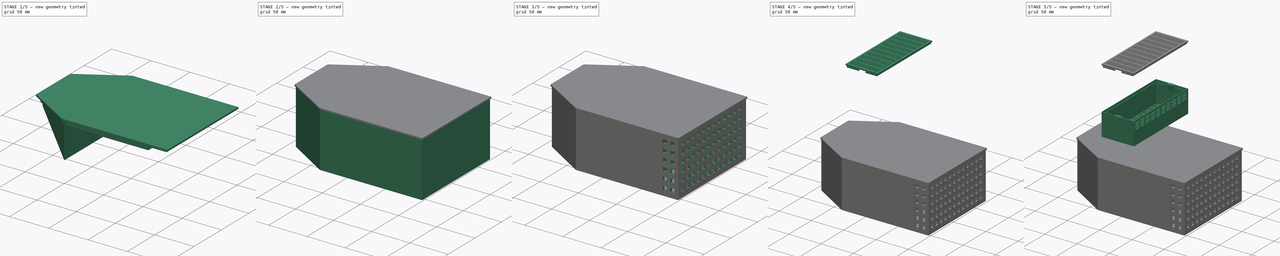
[diagram: build sequence overview — one tinted view per stage of 5, left to right]
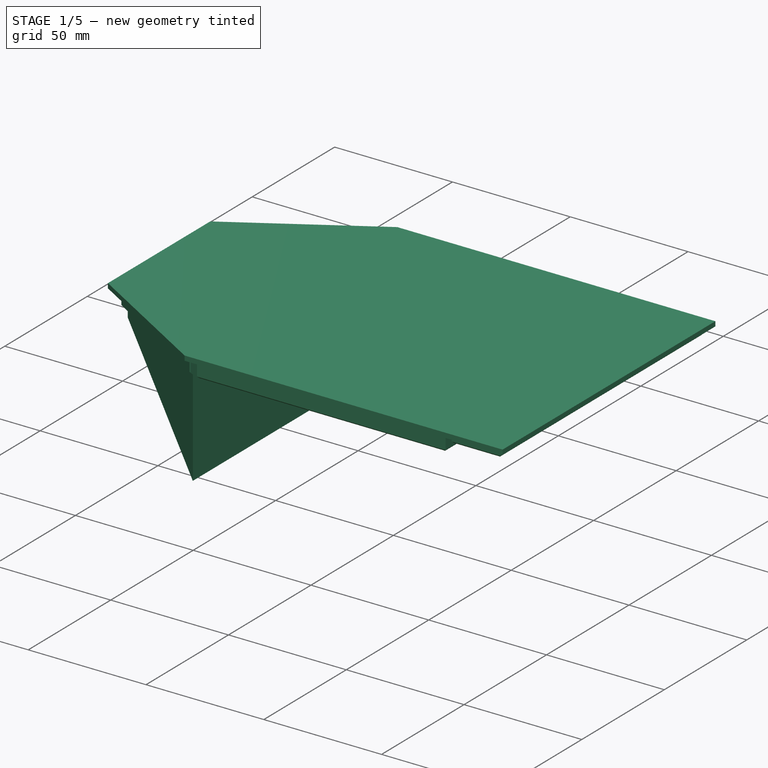
[diagram: stage 1 of 5 — iso view after this stage's code; geometry added in this stage tinted green]
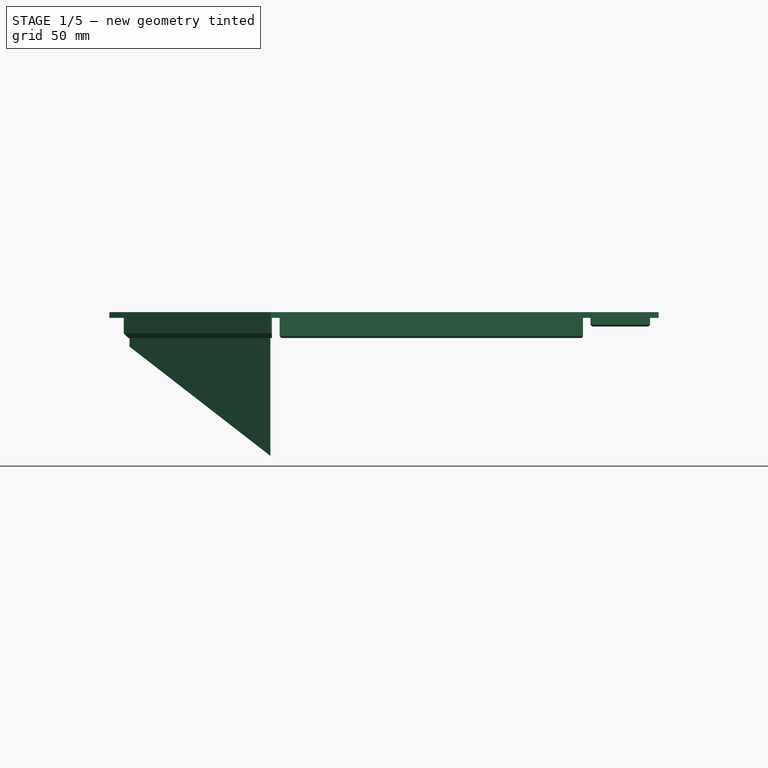
[diagram: stage 1 of 5 — front view after this stage's code; geometry added in this stage tinted green]
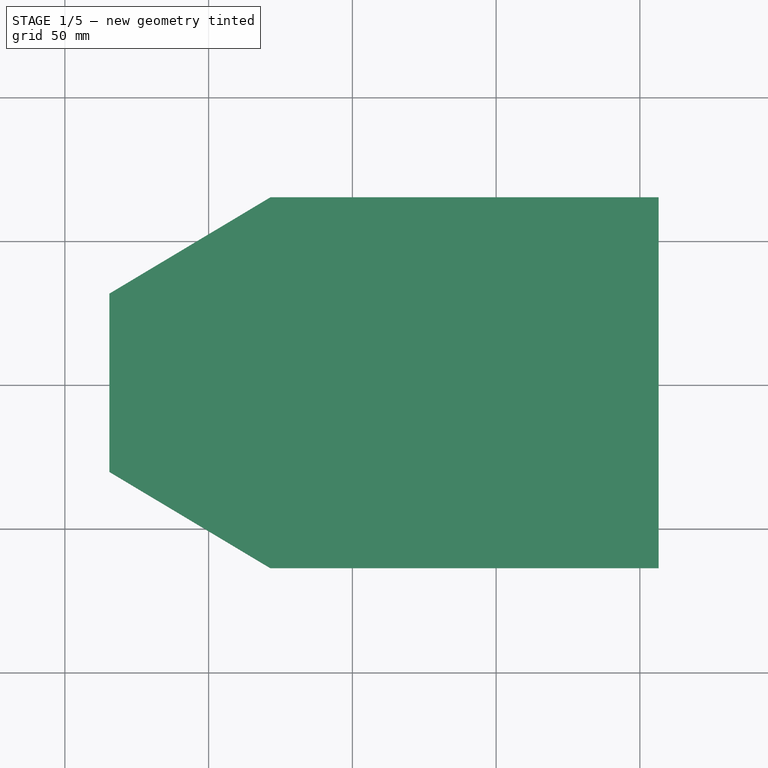
[diagram: stage 1 of 5 — top view after this stage's code; geometry added in this stage tinted green]
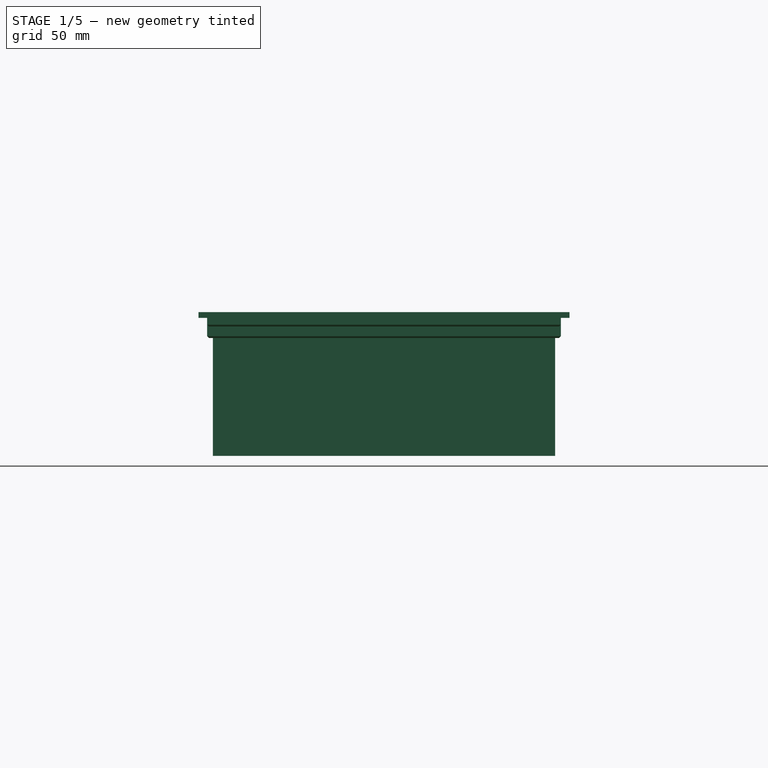
[diagram: stage 1 of 5 — right view after this stage's code; geometry added in this stage tinted green]
FCSTD DOCUMENT  (FreeCAD 0.18.4R)
Label: air-dryer
License: All rights reserved
LicenseURL: http://en.wikipedia.org/wiki/All_rights_reserved
objects: Sketcher::SketchObject×37, PartDesign::Pocket×18, PartDesign::Pad×15, PartDesign::Body×7, PartDesign::LinearPattern×5, PartDesign::Chamfer×5, Part::Fuse×3, PartDesign::Fillet×3, Part::Loft×2, PartDesign::FeatureBase×2, PartDesign::Mirrored×1, Part::Mirroring×1
note: 132 computed .brp shape members not serialized (recipe doc carries the construction recipe); baked Part::Feature solids carry a one-line shape summary decoded from their .brp

FEATURE [PartDesign::Body] Body  label="box"
  Group = -> [Sketch,Pad,Sketch040,Pad017,Sketch041,Pad018,Sketch042,Pocket,Sketch043,Pocket017,Sketch044,Pocket018,Sketch045,Pocket019,Sketch046,Pocket020,Sketch047,Pocket021,LinearPattern,Sketch048,Pocket022,LinearPattern005,Sketch049,Pocket023,Sketch050,Pocket024,Sketch051,Pocket025]
  Origin = -> Origin
  Tip = -> Pocket025
FEATURE [Sketcher::SketchObject] Sketch052
  MapMode = 5
  Support = -> [XY_Plane006]
  sketch-geometry (6):
    g0: LineSegment StartX=-84.5 StartY=31 StartZ=0 EndX=-84.5 EndY=-31 EndZ=0
    g1: LineSegment StartX=-84.5 StartY=-31 StartZ=0 EndX=-28.5 EndY=-64.5 EndZ=0
    g2: LineSegment StartX=-28.5 StartY=-64.5 StartZ=0 EndX=106.5 EndY=-64.5 EndZ=0
    g3: LineSegment StartX=106.5 StartY=-64.5 StartZ=0 EndX=106.5 EndY=64.5 EndZ=0
    g4: LineSegment StartX=106.5 StartY=64.5 StartZ=0 EndX=-28.5 EndY=64.5 EndZ=0
    g5: LineSegment StartX=-28.5 StartY=64.5 StartZ=0 EndX=-84.5 EndY=31 EndZ=0
  constraints (18):
    c: Vertical(g0)
    c: Coincident(g0,g1)
    c: Coincident(g1,g2)
    c: Horizontal(g2)
    c: Coincident(g2,g3)
    c: Vertical(g3)
    c: Coincident(g3,g4)
    c: Horizontal(g4)
    c: Coincident(g4,g5)
    c: Coincident(g5,g0)
    c: DistanceX(g4,g-1) = 28.5
    c: DistanceX(g-1,g3) = 106.5
    c: DistanceX(g0,g-1) = 84.5
    c: DistanceY(g-1,g3) = 64.5
    c: DistanceY(g3,g3) = 129
    c: DistanceY(g-1,g0) = 31
    c: DistanceY(g0,g0) = 62
    c: Equal(g5,g1)
FEATURE [PartDesign::Pad] Pad019
  Length = 2
  Length2 = 100
  Profile = -> Sketch052
  Type = 0
FEATURE [Sketcher::SketchObject] Sketch053
  ExternalGeometry = -> [Pad019]
  MapMode = 5
  Placement = pos=(0,0,0) rot=(1,0,0;3.14159rad)
  Support = -> [Pad019]
  sketch-geometry (10):
    g0: LineSegment StartX=-79.5 StartY=30 StartZ=0 EndX=-28.5 EndY=61.5 EndZ=0
    g1: LineSegment StartX=-28.5 StartY=61.5 StartZ=0 EndX=-27.5 EndY=61.5 EndZ=0
    g2: LineSegment StartX=-27.5 StartY=61.5 StartZ=0 EndX=-27.5 EndY=-61.5 EndZ=0
    g3: LineSegment StartX=-27.5 StartY=-61.5 StartZ=0 EndX=-28.5 EndY=-61.5 EndZ=0
    g4: LineSegment StartX=-28.5 StartY=-61.5 StartZ=0 EndX=-79.5 EndY=-30 EndZ=0
    g5: LineSegment StartX=-79.5 StartY=-30 StartZ=0 EndX=-79.5 EndY=30 EndZ=0
    g6: LineSegment StartX=-77.5 StartY=29 StartZ=0 EndX=-28.5 EndY=59.5 EndZ=0
    g7: LineSegment StartX=-28.5 StartY=59.5 StartZ=0 EndX=-28.5 EndY=-59.5 EndZ=0
    g8: LineSegment StartX=-28.5 StartY=-59.5 StartZ=0 EndX=-77.5 EndY=-29 EndZ=0
    g9: LineSegment StartX=-77.5 StartY=-29 StartZ=0 EndX=-77.5 EndY=29 EndZ=0
  constraints (30):
    c: Coincident(g0,g1)
    c: Coincident(g1,g2)
    c: Vertical(g2)
    c: Coincident(g2,g3)
    c: Horizontal(g3)
    c: Coincident(g3,g4)
    c: Coincident(g4,g5)
    c: Coincident(g5,g0)
    c: Vertical(g5)
    c: DistanceX(g3,g3) = 1
    c: DistanceX(g3,g-4) = 0
    c: DistanceY(g-4,g3) = 3
    c: DistanceY(g0,g-3) = 3
    c: Horizontal(g1)
    c: DistanceX(g-3,g0) = 0
    c: DistanceY(g0,g-3) = 1
    c: DistanceY(g-4,g4) = 1
    c: DistanceX(g-3,g0) = 5
    c: Coincident(g6,g7)
    c: Vertical(g7)
    c: Coincident(g7,g8)
    c: Coincident(g8,g9)
    c: Coincident(g9,g6)
    c: Vertical(g9)
    c: DistanceX(g0,g6) = 2
    c: DistanceY(g6,g0) = 1
    c: DistanceX(g0,g6) = 0
    c: DistanceY(g6,g0) = 2
    c: DistanceY(g3,g7) = 2
    c: DistanceY(g4,g8) = 1
FEATURE [PartDesign::Pad] Pad020
  BaseFeature = -> Pad019
  Length = 7
  Length2 = 100
  Profile = -> Sketch053
  Type = 0
FEATURE [Sketcher::SketchObject] Sketch054
  MapMode = 5
  Placement = pos=(0,0,0) rot=(1,0,0;3.14159rad)
  Support = -> [Pad020]
  sketch-geometry (8):
    g0: LineSegment StartX=-25.5 StartY=61.5 StartZ=0 EndX=80.5 EndY=61.5 EndZ=0
    g1: LineSegment StartX=80.5 StartY=61.5 StartZ=0 EndX=80.5 EndY=-61.5 EndZ=0
    g2: LineSegment StartX=80.5 StartY=-61.5 StartZ=0 EndX=-25.5 EndY=-61.5 EndZ=0
    g3: LineSegment StartX=-25.5 StartY=-61.5 StartZ=0 EndX=-25.5 EndY=61.5 EndZ=0
    g4: LineSegment StartX=-24.5 StartY=60.5 StartZ=0 EndX=79.5 EndY=60.5 EndZ=0
    g5: LineSegment StartX=79.5 StartY=60.5 StartZ=0 EndX=79.5 EndY=-60.5 EndZ=0
    g6: LineSegment StartX=79.5 StartY=-60.5 StartZ=0 EndX=-24.5 EndY=-60.5 EndZ=0
    g7: LineSegment StartX=-24.5 StartY=-60.5 StartZ=0 EndX=-24.5 EndY=60.5 EndZ=0
  constraints (24):
    c: Coincident(g0,g1)
    c: Coincident(g1,g2)
    c: Coincident(g2,g3)
    c: Coincident(g3,g0)
    c: Horizontal(g0)
    c: Horizontal(g2)
    c: Vertical(g1)
    c: Vertical(g3)
    c: Coincident(g4,g5)
    c: Coincident(g5,g6)
    c: Coincident(g6,g7)
    c: Coincident(g7,g4)
    c: Horizontal(g4)
    c: Horizontal(g6)
    c: Vertical(g5)
    c: Vertical(g7)
    c: DistanceX(g0,g0) = 106
    c: DistanceX(g0,g-1) = 25.5
    c: DistanceY(g-1,g0) = 61.5
    c: DistanceY(g1,g1) = 123
    c: DistanceX(g2,g6) = 1
    c: DistanceY(g2,g6) = 1
    c: DistanceY(g4,g0) = 1
    c: DistanceX(g4,g0) = 1
FEATURE [PartDesign::Pad] Pad021
  BaseFeature = -> Pad020
  Length = 7
  Length2 = 100
  Profile = -> Sketch054
  Type = 0
FEATURE [Sketcher::SketchObject] Sketch055
  MapMode = 5
  Placement = pos=(0,0,0) rot=(1,0,0;3.14159rad)
  Support = -> [Pad021]
  sketch-geometry (8):
    g0: LineSegment StartX=82.5 StartY=61.5 StartZ=0 EndX=103.5 EndY=61.5 EndZ=0
    g1: LineSegment StartX=103.5 StartY=61.5 StartZ=0 EndX=103.5 EndY=-61.5 EndZ=0
    g2: LineSegment StartX=103.5 StartY=-61.5 StartZ=0 EndX=82.5 EndY=-61.5 EndZ=0
    g3: LineSegment StartX=82.5 StartY=-61.5 StartZ=0 EndX=82.5 EndY=61.5 EndZ=0
    g4: LineSegment StartX=83.5 StartY=60.5 StartZ=0 EndX=102.5 EndY=60.5 EndZ=0
    g5: LineSegment StartX=102.5 StartY=60.5 StartZ=0 EndX=102.5 EndY=-60.5 EndZ=0
    g6: LineSegment StartX=102.5 StartY=-60.5 StartZ=0 EndX=83.5 EndY=-60.5 EndZ=0
    g7: LineSegment StartX=83.5 StartY=-60.5 StartZ=0 EndX=83.5 EndY=60.5 EndZ=0
  constraints (24):
    c: Coincident(g0,g1)
    c: Coincident(g1,g2)
    c: Coincident(g2,g3)
    c: Coincident(g3,g0)
    c: Horizontal(g0)
    c: Horizontal(g2)
    c: Vertical(g1)
    c: Vertical(g3)
    c: Coincident(g4,g5)
    c: Coincident(g5,g6)
    c: Coincident(g6,g7)
    c: Coincident(g7,g4)
    c: Horizontal(g4)
    c: Horizontal(g6)
    c: Vertical(g5)
    c: Vertical(g7)
    c: DistanceX(g-1,g0) = 82.5
    c: DistanceX(g0,g0) = 21
    c: DistanceX(g4,g4) = 19
    c: DistanceX(g0,g4) = 1
    c: DistanceY(g4,g0) = 1
    c: DistanceY(g-1,g4) = 60.5
    c: DistanceY(g7,g7) = 121
    c: DistanceY(g1,g5) = 1
FEATURE [PartDesign::Pad] Pad022
  BaseFeature = -> Pad021
  Length = 3
  Length2 = 100
  Profile = -> Sketch055
  Type = 0
FEATURE [Sketcher::SketchObject] Sketch056
  MapMode = 5
  Placement = pos=(-28.5,0,0) rot=(0.57735,-0.57735,-0.57735;2.0944rad)
  Support = -> [Pad022]
  sketch-geometry (4):
    g0: LineSegment StartX=-59.5 StartY=0 StartZ=0 EndX=59.5 EndY=0 EndZ=0
    g1: LineSegment StartX=59.5 StartY=0 StartZ=0 EndX=59.5 EndY=-48 EndZ=0
    g2: LineSegment StartX=59.5 StartY=-48 StartZ=0 EndX=-59.5 EndY=-48 EndZ=0
    g3: LineSegment StartX=-59.5 StartY=-48 StartZ=0 EndX=-59.5 EndY=0 EndZ=0
  constraints (12):
    c: Coincident(g0,g1)
    c: Coincident(g1,g2)
    c: Coincident(g2,g3)
    c: Coincident(g3,g0)
    c: Horizontal(g0)
    c: Horizontal(g2)
    c: Vertical(g1)
    c: Vertical(g3)
    c: PointOnObject(g0,g-1)
    c: DistanceX(g0,g0) = 119
    c: DistanceX(g0,g-1) = 59.5
    c: DistanceY(g3,g3) = 48
FEATURE [Sketcher::SketchObject] Sketch057
  MapMode = 5
  Placement = pos=(-77.5,0,0) rot=(0.57735,0.57735,0.57735;2.0944rad)
  Support = -> [Pad022]
  sketch-geometry (4):
    g0: LineSegment StartX=29 StartY=0 StartZ=0 EndX=-29 EndY=0 EndZ=0
    g1: LineSegment StartX=-29 StartY=0 StartZ=0 EndX=-29 EndY=-10 EndZ=0
    g2: LineSegment StartX=-29 StartY=-10 StartZ=0 EndX=29 EndY=-10 EndZ=0
    g3: LineSegment StartX=29 StartY=-10 StartZ=0 EndX=29 EndY=0 EndZ=0
  constraints (12):
    c: Coincident(g0,g1)
    c: Coincident(g1,g2)
    c: Coincident(g2,g3)
    c: Coincident(g3,g0)
    c: Horizontal(g0)
    c: Horizontal(g2)
    c: Vertical(g1)
    c: Vertical(g3)
    c: PointOnObject(g0,g-1)
    c: DistanceX(g2,g2) = 58
    c: DistanceX(g1,g-1) = 29
    c: DistanceY(g3,g3) = 10
FEATURE [Part::Loft] Loft
  Closed = false
  MaxDegree = 5
  Placement = pos=(0,0,70) rot=(0,0,1;0rad)
  Ruled = false
  Sections = -> [Sketch056,Sketch057]
  Solid = true
FEATURE [PartDesign::Body] Body010  label="pin"
  Group = -> [Sketch064,Pad023,Sketch065,Pad024,Sketch066,Pocket026,Chamfer,Chamfer001]
  Origin = -> Origin010
  Placement = pos=(-78.5,25,55) rot=(0,0,1;0rad)
  Tip = -> Chamfer001
FEATURE [Sketcher::SketchObject] Sketch067
  ExternalGeometry = -> [Pad022]
  MapMode = 5
  Placement = pos=(0,0,0) rot=(1,0,0;3.14159rad)
  Support = -> [Pad022]
  sketch-geometry (4):
    g0: LineSegment StartX=-28 StartY=61.5 StartZ=0 EndX=-25.3 EndY=61.5 EndZ=0
    g1: LineSegment StartX=-25.3 StartY=61.5 StartZ=0 EndX=-25.3 EndY=-61.5 EndZ=0
    g2: LineSegment StartX=-25.3 StartY=-61.5 StartZ=0 EndX=-28 EndY=-61.5 EndZ=0
    g3: LineSegment StartX=-28 StartY=-61.5 StartZ=0 EndX=-28 EndY=61.5 EndZ=0
  constraints (12):
    c: Coincident(g0,g1)
    c: Coincident(g1,g2)
    c: Coincident(g2,g3)
    c: Coincident(g3,g0)
    c: Horizontal(g0)
    c: Horizontal(g2)
    c: Vertical(g1)
    c: Vertical(g3)
    c: PointOnObject(g0,g-3)
    c: PointOnObject(g1,g-4)
    c: DistanceX(g-4,g1) = 0.2
    c: DistanceX(g0,g-3) = 0.5
FEATURE [PartDesign::Pocket] Pocket027
  BaseFeature = -> Pad022
  Length = 7
  Length2 = 100
  Profile = -> Sketch067
  Reversed = true
  Type = 0
FEATURE [Sketcher::SketchObject] Sketch068
  ExternalGeometry = -> [Pocket027]
  MapMode = 5
  Placement = pos=(0,0,0) rot=(1,0,0;3.14159rad)
  Support = -> [Pocket027]
  sketch-geometry (4):
    g0: LineSegment StartX=80.2 StartY=61.5 StartZ=0 EndX=82.8 EndY=61.5 EndZ=0
    g1: LineSegment StartX=82.8 StartY=61.5 StartZ=0 EndX=82.8 EndY=-61.5 EndZ=0
    g2: LineSegment StartX=82.8 StartY=-61.5 StartZ=0 EndX=80.2 EndY=-61.5 EndZ=0
    g3: LineSegment StartX=80.2 StartY=-61.5 StartZ=0 EndX=80.2 EndY=61.5 EndZ=0
  constraints (12):
    c: Coincident(g0,g1)
    c: Coincident(g1,g2)
    c: Coincident(g2,g3)
    c: Coincident(g3,g0)
    c: Horizontal(g0)
    c: Horizontal(g2)
    c: Vertical(g1)
    c: Vertical(g3)
    c: PointOnObject(g0,g-3)
    c: PointOnObject(g1,g-4)
    c: DistanceX(g-4,g1) = 0.3
    c: DistanceX(g0,g-3) = 0.3
FEATURE [PartDesign::Pocket] Pocket028
  BaseFeature = -> Pocket027
  Length = 9
  Length2 = 100
  Profile = -> Sketch068
  Reversed = true
  Type = 0
FEATURE [PartDesign::Body] Body006
  Group = -> [Sketch052,Pad019,Sketch053,Pad020,Sketch054,Pad021,Sketch055,Pad022,Sketch056,Sketch057,Sketch067,Pocket027,Sketch068,Pocket028]
  Origin = -> Origin006
  Placement = pos=(0,0,70) rot=(0,0,1;0rad)
  Tip = -> Pocket028
FEATURE [Part::Fuse] Fusion
  Base = -> Body006
  Tool = -> Loft
FEATURE [PartDesign::FeatureBase] BaseFeature
  BaseFeature = -> Fusion
FEATURE [PartDesign::Chamfer] Chamfer002
  Base = -> BaseFeature [Edge84,Edge61,Edge63,Edge58,Edge51,Edge79,Edge78,Edge65]
  BaseFeature = -> BaseFeature
  Size = 0.6
FEATURE [PartDesign::Chamfer] Chamfer003
  Base = -> Chamfer002 [Edge66,Edge86,Edge85]
  BaseFeature = -> Chamfer002
  Size = 1.6
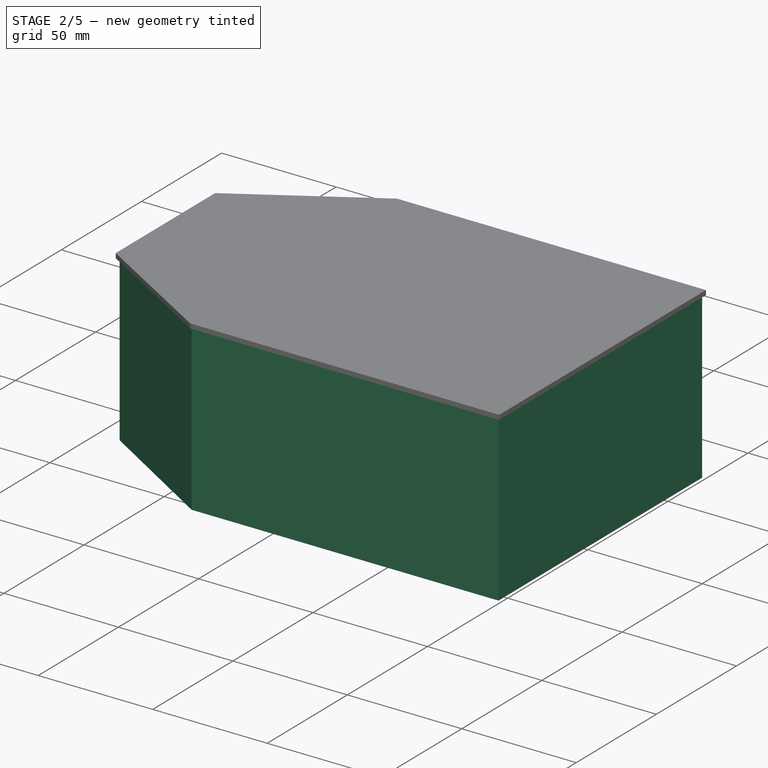
[diagram: stage 2 of 5 — iso view after this stage's code; geometry added in this stage tinted green]
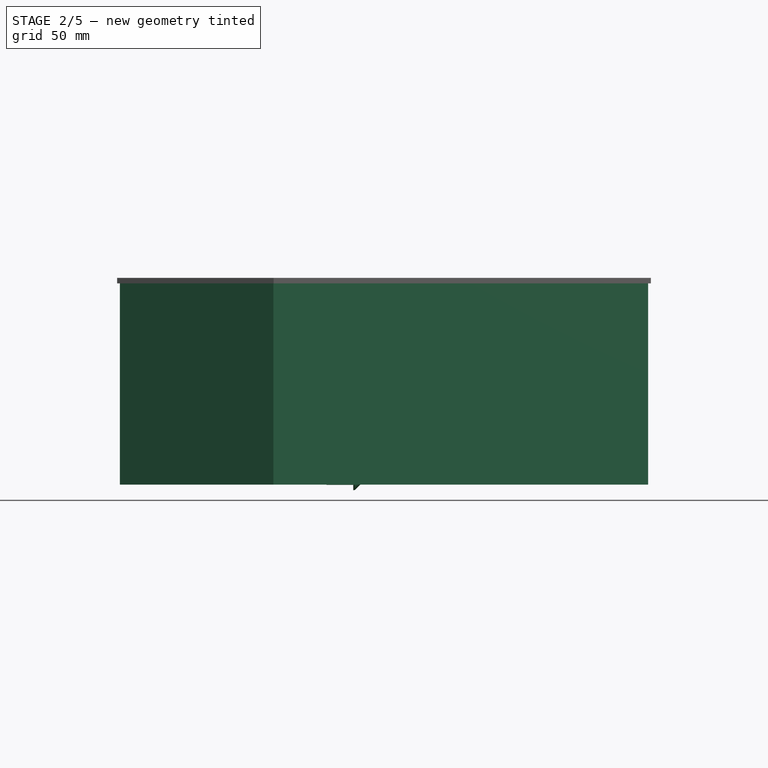
[diagram: stage 2 of 5 — front view after this stage's code; geometry added in this stage tinted green]
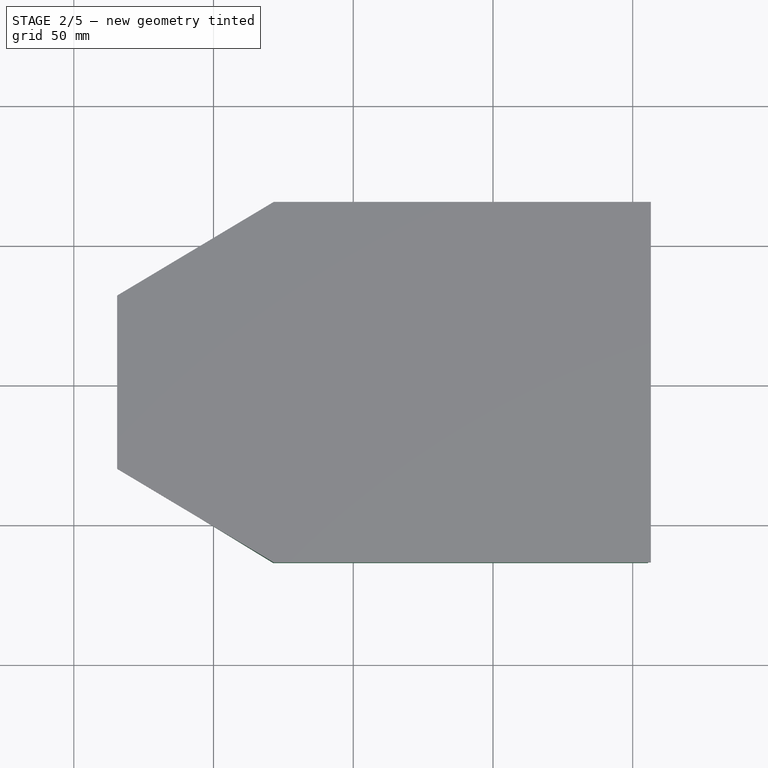
[diagram: stage 2 of 5 — top view after this stage's code; geometry added in this stage tinted green]
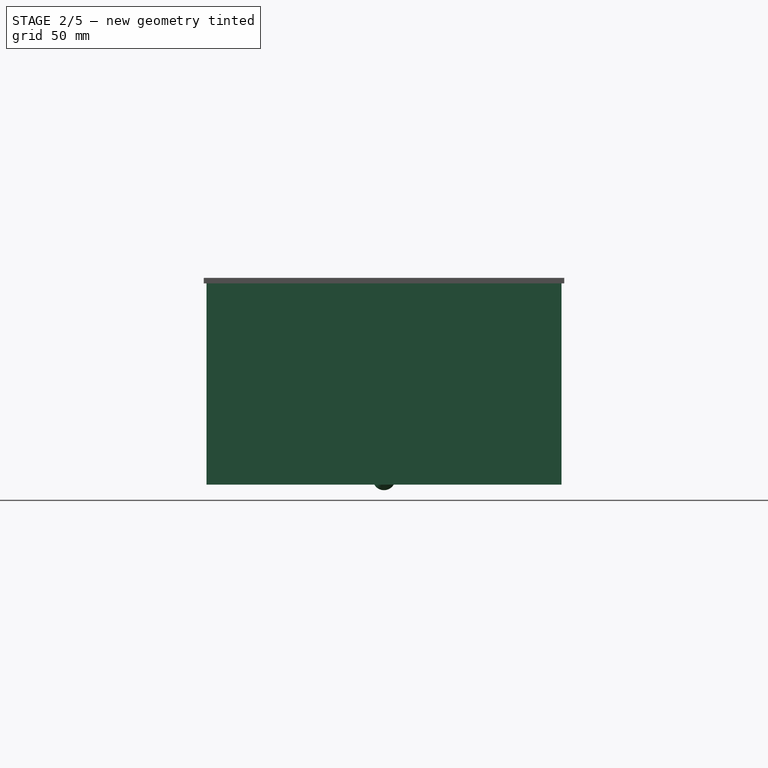
[diagram: stage 2 of 5 — right view after this stage's code; geometry added in this stage tinted green]
FEATURE [PartDesign::Body] Body005  label="container-cup"
  Group = -> [Sketch036,Pad014,Sketch037,Pad015,Sketch038,Pad016,Sketch039,Pocket016,LinearPattern004]
  Origin = -> Origin005
  Placement = pos=(0,0,-143) rot=(0,0,1;0rad)
  Tip = -> LinearPattern004
FEATURE [Sketcher::SketchObject] Sketch
  MapMode = 5
  Support = -> [XY_Plane]
  sketch-geometry (16):
    g0: LineSegment StartX=-78.5 StartY=30 StartZ=0 EndX=-28.5 EndY=60.5 EndZ=0
    g1: LineSegment StartX=-28.5 StartY=60.5 StartZ=0 EndX=25.5 EndY=60.5 EndZ=0
    g2: LineSegment StartX=25.5 StartY=60.5 StartZ=0 EndX=79.5 EndY=60.5 EndZ=0
    g3: LineSegment StartX=79.5 StartY=60.5 StartZ=0 EndX=102.5 EndY=60.5 EndZ=0
    g4: LineSegment StartX=102.5 StartY=60.5 StartZ=0 EndX=102.5 EndY=-60.5 EndZ=0
    g5: LineSegment StartX=102.5 StartY=-60.5 StartZ=0 EndX=79.5 EndY=-60.5 EndZ=0
    g6: LineSegment StartX=79.5 StartY=-60.5 StartZ=0 EndX=25.5 EndY=-60.5 EndZ=0
    g7: LineSegment StartX=25.5 StartY=-60.5 StartZ=0 EndX=-28.5 EndY=-60.5 EndZ=0
    g8: LineSegment StartX=-28.5 StartY=-60.5 StartZ=0 EndX=-78.5 EndY=-30 EndZ=0
    g9: LineSegment StartX=-78.5 StartY=-30 StartZ=0 EndX=-78.5 EndY=30 EndZ=0
    g10: LineSegment StartX=-83.5 StartY=30 StartZ=0 EndX=-83.5 EndY=-30 EndZ=0
    g11: LineSegment StartX=-83.5 StartY=-30 StartZ=0 EndX=-28.582 EndY=-63.5 EndZ=0
    g12: LineSegment StartX=-28.582 StartY=-63.5 StartZ=0 EndX=105.5 EndY=-63.5 EndZ=0
    g13: LineSegment StartX=105.5 StartY=-63.5 StartZ=0 EndX=105.5 EndY=63.5 EndZ=0
    g14: LineSegment StartX=105.5 StartY=63.5 StartZ=0 EndX=-28.582 EndY=63.5 EndZ=0
    g15: LineSegment StartX=-28.582 StartY=63.5 StartZ=0 EndX=-83.5 EndY=30 EndZ=0
  constraints (48):
    c: Coincident(g0,g1)
    c: Horizontal(g1)
    c: Coincident(g1,g2)
    c: Horizontal(g2)
    c: Coincident(g2,g3)
    c: Horizontal(g3)
    c: Coincident(g3,g4)
    c: Vertical(g4)
    c: Coincident(g4,g5)
    c: Horizontal(g5)
    c: Coincident(g5,g6)
    c: Horizontal(g6)
    c: Coincident(g6,g7)
    c: Horizontal(g7)
    c: Coincident(g7,g8)
    c: Coincident(g8,g9)
    c: Coincident(g9,g0)
    c: Vertical(g9)
    c: Equal(g3,g5)
    c: Equal(g6,g2)
    c: Equal(g1,g7)
    c: DistanceY(g6,g1) = 121
    c: DistanceY(g-1,g0) = 60.5
    c: DistanceX(g1,g1) = 54
    c: DistanceX(g0,g-1) = 28.5
    c: DistanceX(g2,g2) = 54
    c: DistanceX(g3,g3) = 23
    c: DistanceY(g9,g9) = 60
    c: Equal(g0,g8)
    c: DistanceX(g0,g0) = 50
    c: Vertical(g10)
    c: Coincident(g10,g11)
    c: Coincident(g11,g12)
    c: Horizontal(g12)
    c: Coincident(g12,g13)
    c: Vertical(g13)
    c: Coincident(g13,g14)
    c: Horizontal(g14)
    c: Coincident(g14,g15)
    c: Coincident(g15,g10)
    c: DistanceX(g3,g13) = 3
    c: DistanceY(g3,g13) = 3
    c: DistanceY(g12,g4) = 3
    c: DistanceX(g10,g0) = 5
    c: Parallel(g15,g0)
    c: Parallel(g11,g8)
    c: DistanceY(g10,g8) = 0
    c: DistanceY(g0,g10) = 0
FEATURE [PartDesign::Pad] Pad
  Length = 70
  Length2 = 100
  Profile = -> Sketch
  Type = 0
FEATURE [Sketcher::SketchObject] Sketch040
  ExternalGeometry = -> [Pad]
  MapMode = 5
  Placement = pos=(0,0,0) rot=(1,0,0;3.14159rad)
  Support = -> [Pad]
  sketch-geometry (6):
    g0: LineSegment StartX=-83.5 StartY=30 StartZ=0 EndX=-28.582 EndY=63.5 EndZ=0
    g1: LineSegment StartX=-28.582 StartY=63.5 StartZ=0 EndX=105.5 EndY=63.5 EndZ=0
    g2: LineSegment StartX=105.5 StartY=63.5 StartZ=0 EndX=105.5 EndY=-63.5 EndZ=0
    g3: LineSegment StartX=105.5 StartY=-63.5 StartZ=0 EndX=-28.582 EndY=-63.5 EndZ=0
    g4: LineSegment StartX=-28.582 StartY=-63.5 StartZ=0 EndX=-83.5 EndY=-30 EndZ=0
    g5: LineSegment StartX=-83.5 StartY=-30 StartZ=0 EndX=-83.5 EndY=30 EndZ=0
  constraints (13):
    c: Coincident(g-3,g0)
    c: Coincident(g0,g-3)
    c: Coincident(g0,g1)
    c: Horizontal(g1)
    c: Coincident(g1,g2)
    c: Coincident(g2,g-5)
    c: Vertical(g2)
    c: Coincident(g2,g3)
    c: Coincident(g3,g-4)
    c: Coincident(g3,g4)
    c: Coincident(g4,g-4)
    c: Coincident(g4,g5)
    c: Coincident(g5,g0)
FEATURE [PartDesign::Pad] Pad017
  BaseFeature = -> Pad
  Length = 2
  Length2 = 100
  Profile = -> Sketch040
  Type = 0
FEATURE [Sketcher::SketchObject] Sketch064
  MapMode = 5
  Placement = pos=(0,0,0) rot=(0.57735,0.57735,0.57735;2.0944rad)
  Support = -> [YZ_Plane010]
  sketch-geometry (1):
    g0: Circle CenterX=0 CenterY=0 CenterZ=0 NormalX=0 NormalY=0 NormalZ=1 AngleXU=0 Radius=4
  constraints (2):
    c: Radius(g0) = 4
    c: Coincident(g0,g-1)
FEATURE [PartDesign::Pad] Pad023
  Length = 3
  Length2 = 100
  Placement = pos=(0,0,0) rot=(0.57735,0.57735,0.57735;2.0944rad)
  Profile = -> Sketch064
  Type = 0
FEATURE [Sketcher::SketchObject] Sketch065
  MapMode = 5
  Placement = pos=(0,0,0) rot=(0.57735,0.57735,-0.57735;4.18879rad)
  Support = -> [Pad023]
  sketch-geometry (1):
    g0: Circle CenterX=0 CenterY=0 CenterZ=0 NormalX=0 NormalY=0 NormalZ=1 AngleXU=0 Radius=2.1
  constraints (2):
    c: Coincident(g0,g-1)
    c: Diameter(g0) = 4.2
FEATURE [PartDesign::Pad] Pad024
  BaseFeature = -> Pad023
  Length = 10
  Length2 = 100
  Placement = pos=(0,0,0) rot=(0.57735,0.57735,0.57735;2.0944rad)
  Profile = -> Sketch065
  Type = 0
FEATURE [Sketcher::SketchObject] Sketch066
  MapMode = 5
  Placement = pos=(-10,4.4e-15,-4.4e-15) rot=(0.57735,0.57735,-0.57735;4.18879rad)
  Support = -> [Pad024]
  sketch-geometry (1):
    g0: Circle CenterX=0 CenterY=0 CenterZ=0 NormalX=0 NormalY=0 NormalZ=1 AngleXU=0 Radius=1.1
  constraints (2):
    c: Coincident(g0,g-1)
    c: Diameter(g0) = 2.2
FEATURE [PartDesign::Pocket] Pocket026
  BaseFeature = -> Pad024
  Length = 10
  Length2 = 100
  Placement = pos=(0,0,0) rot=(0.57735,0.57735,0.57735;2.0944rad)
  Profile = -> Sketch066
  Type = 0
FEATURE [PartDesign::Chamfer] Chamfer
  Base = -> Pocket026 [Edge3]
  BaseFeature = -> Pocket026
  Placement = pos=(0,0,0) rot=(0.57735,0.57735,0.57735;2.0944rad)
  Size = 2.5
FEATURE [PartDesign::Chamfer] Chamfer001
  Base = -> Chamfer [Edge8]
  BaseFeature = -> Chamfer
  Placement = pos=(0,0,0) rot=(0.57735,0.57735,0.57735;2.0944rad)
  Size = 0.5
FEATURE [PartDesign::Fillet] Fillet
  Base = -> Chamfer003 [Edge39,Edge43]
  BaseFeature = -> Chamfer003
  Radius = 0.3
FEATURE [PartDesign::Fillet] Fillet001
  Base = -> Fillet [Edge46,Edge50]
  BaseFeature = -> Fillet
  Radius = 0.3
FEATURE [PartDesign::Chamfer] Chamfer004
  Base = -> Fillet001 [Edge94]
  BaseFeature = -> Fillet001
  Size = 0.3
FEATURE [PartDesign::Fillet] Fillet002
  Base = -> Chamfer004 [Edge44]
  BaseFeature = -> Chamfer004
  Radius = 6
FEATURE [PartDesign::Body] Body011  label="cup"
  BaseFeature = -> Fusion
  Group = -> [BaseFeature,Chamfer002,Chamfer003,Fillet,Fillet001,Chamfer004,Fillet002]
  Origin = -> Origin011
  Tip = -> Fillet002
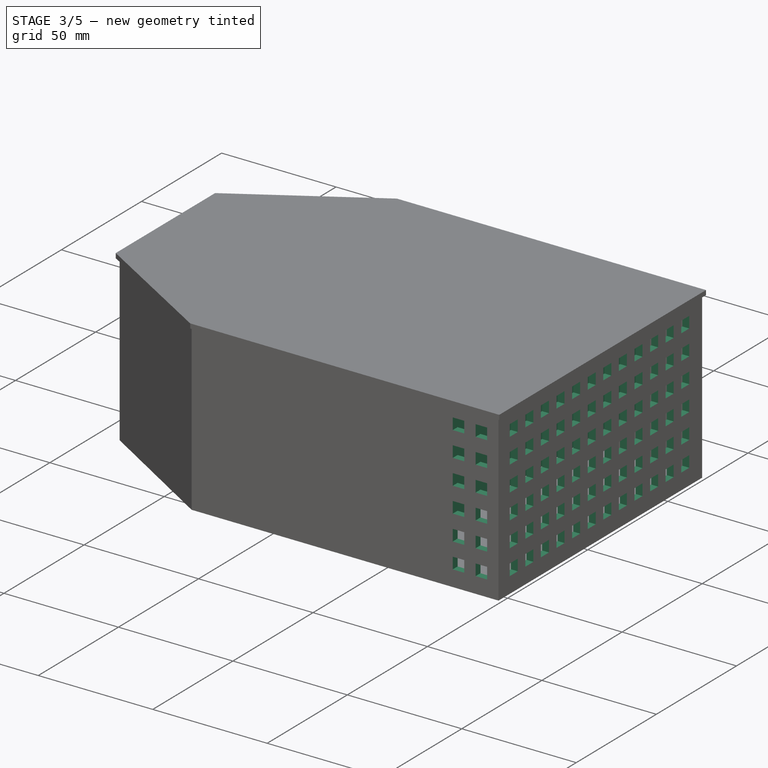
[diagram: stage 3 of 5 — iso view after this stage's code; geometry added in this stage tinted green]
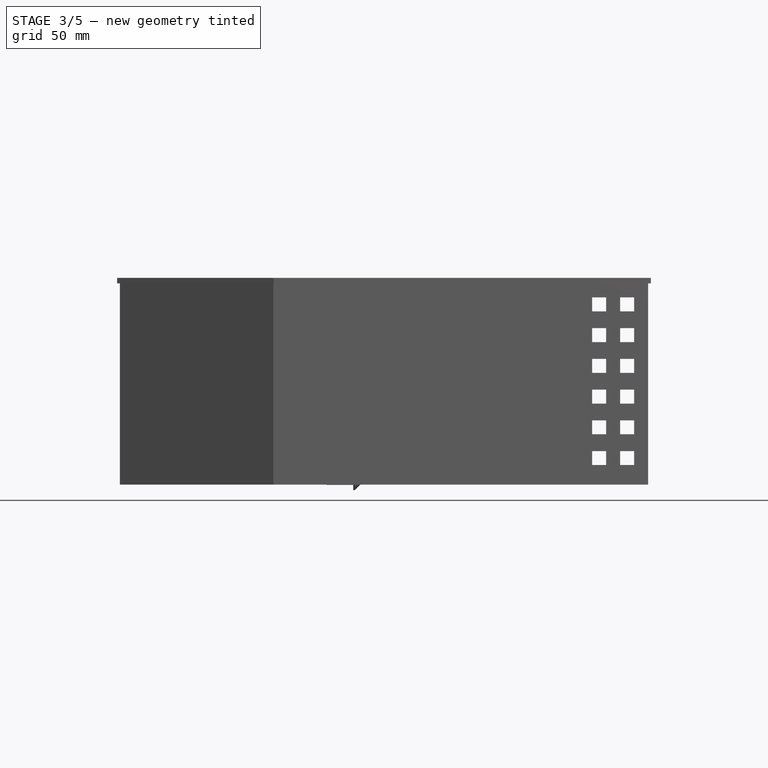
[diagram: stage 3 of 5 — front view after this stage's code; geometry added in this stage tinted green]
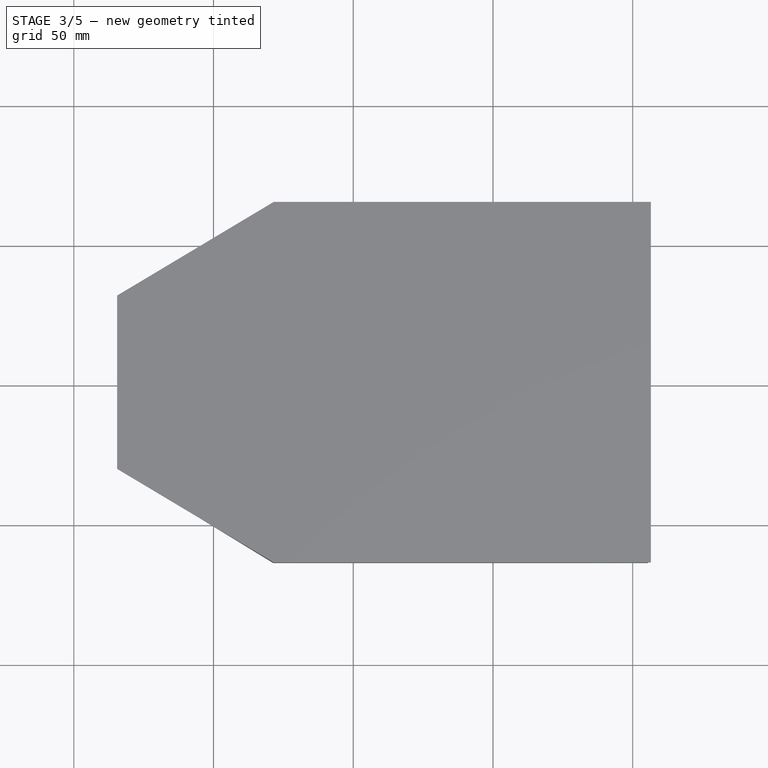
[diagram: stage 3 of 5 — top view after this stage's code; geometry added in this stage tinted green]
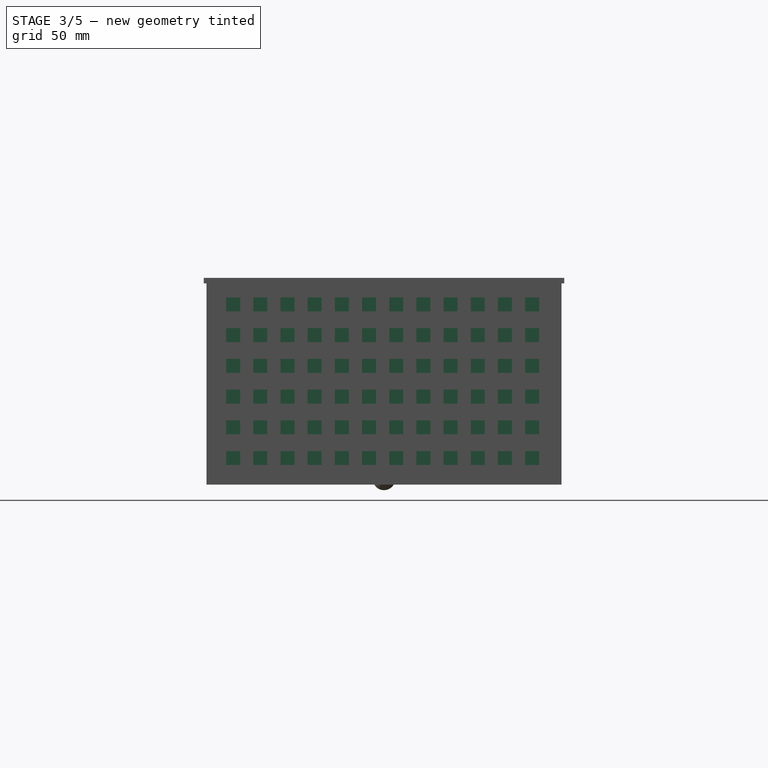
[diagram: stage 3 of 5 — right view after this stage's code; geometry added in this stage tinted green]
FEATURE [Sketcher::SketchObject] Sketch041
  ExternalGeometry = -> [Pad017]
  MapMode = 5
  Placement = pos=(0,0,70) rot=(0,0,1;0rad)
  Support = -> [Pad017]
  sketch-geometry (12):
    g0: LineSegment StartX=-28.5 StartY=60.5 StartZ=0 EndX=-25.5 EndY=60.5 EndZ=0
    g1: LineSegment StartX=-25.5 StartY=60.5 StartZ=0 EndX=-25.5 EndY=-60.5 EndZ=0
    g2: LineSegment StartX=-25.5 StartY=-60.5 StartZ=0 EndX=-28.5 EndY=-60.5 EndZ=0
    g3: LineSegment StartX=-28.5 StartY=-60.5 StartZ=0 EndX=-28.5 EndY=60.5 EndZ=0
    g4: LineSegment StartX=25.5 StartY=60.5 StartZ=0 EndX=28.5 EndY=60.5 EndZ=0
    g5: LineSegment StartX=28.5 StartY=60.5 StartZ=0 EndX=28.5 EndY=-60.5 EndZ=0
    g6: LineSegment StartX=28.5 StartY=-60.5 StartZ=0 EndX=25.5 EndY=-60.5 EndZ=0
    g7: LineSegment StartX=25.5 StartY=-60.5 StartZ=0 EndX=25.5 EndY=60.5 EndZ=0
    g8: LineSegment StartX=79.5 StartY=60.5 StartZ=0 EndX=82.5 EndY=60.5 EndZ=0
    g9: LineSegment StartX=82.5 StartY=60.5 StartZ=0 EndX=82.5 EndY=-60.5 EndZ=0
    g10: LineSegment StartX=82.5 StartY=-60.5 StartZ=0 EndX=79.5 EndY=-60.5 EndZ=0
    g11: LineSegment StartX=79.5 StartY=-60.5 StartZ=0 EndX=79.5 EndY=60.5 EndZ=0
  constraints (33):
    c: Coincident(g0,g1)
    c: Coincident(g1,g2)
    c: Coincident(g2,g3)
    c: Coincident(g3,g0)
    c: Horizontal(g0)
    c: Horizontal(g2)
    c: Vertical(g1)
    c: Vertical(g3)
    c: Coincident(g4,g5)
    c: Coincident(g5,g6)
    c: Coincident(g6,g7)
    c: Coincident(g7,g4)
    c: Horizontal(g4)
    c: Horizontal(g6)
    c: Vertical(g5)
    c: Vertical(g7)
    c: Coincident(g8,g9)
    c: Coincident(g9,g10)
    c: Coincident(g10,g11)
    c: Coincident(g11,g8)
    c: Horizontal(g8)
    c: Horizontal(g10)
    c: Vertical(g9)
    c: Vertical(g11)
    c: Coincident(g0,g-4)
    c: Coincident(g4,g-5)
    c: Coincident(g8,g-5)
    c: PointOnObject(g10,g-3)
    c: PointOnObject(g6,g-3)
    c: PointOnObject(g1,g-3)
    c: DistanceX(g0,g0) = 3
    c: DistanceX(g4,g4) = 3
    c: DistanceX(g8,g8) = 3
FEATURE [PartDesign::Pad] Pad018
  BaseFeature = -> Pad017
  Length = 70
  Length2 = 100
  Profile = -> Sketch041
  Reversed = true
  Type = 0
FEATURE [Sketcher::SketchObject] Sketch042
  ExternalGeometry = -> [Pad018]
  MapMode = 5
  Placement = pos=(-28.5,0,0) rot=(0.57735,-0.57735,-0.57735;2.0944rad)
  Support = -> [Pad018]
  sketch-geometry (4):
    g0: LineSegment StartX=-60.5 StartY=22 StartZ=0 EndX=60.5 EndY=22 EndZ=0
    g1: LineSegment StartX=60.5 StartY=22 StartZ=0 EndX=60.5 EndY=0 EndZ=0
    g2: LineSegment StartX=60.5 StartY=0 StartZ=0 EndX=-60.5 EndY=0 EndZ=0
    g3: LineSegment StartX=-60.5 StartY=0 StartZ=0 EndX=-60.5 EndY=22 EndZ=0
  constraints (11):
    c: Coincident(g0,g1)
    c: Coincident(g1,g2)
    c: Coincident(g2,g3)
    c: Coincident(g3,g0)
    c: Horizontal(g0)
    c: Horizontal(g2)
    c: Vertical(g1)
    c: Vertical(g3)
    c: Coincident(g-3,g2)
    c: PointOnObject(g0,g-5)
    c: DistanceY(g1,g1) = 22
FEATURE [PartDesign::Pocket] Pocket
  BaseFeature = -> Pad018
  Length = 3
  Length2 = 100
  Profile = -> Sketch042
  Type = 0
FEATURE [Sketcher::SketchObject] Sketch043
  ExternalGeometry = -> [Pocket]
  MapMode = 5
  Placement = pos=(82.5,0,0) rot=(0.57735,0.57735,0.57735;2.0944rad)
  Support = -> [Pocket]
  sketch-geometry (4):
    g0: LineSegment StartX=-60.5 StartY=22 StartZ=0 EndX=60.5 EndY=22 EndZ=0
    g1: LineSegment StartX=60.5 StartY=22 StartZ=0 EndX=60.5 EndY=0 EndZ=0
    g2: LineSegment StartX=60.5 StartY=0 StartZ=0 EndX=-60.5 EndY=0 EndZ=0
    g3: LineSegment StartX=-60.5 StartY=0 StartZ=0 EndX=-60.5 EndY=22 EndZ=0
  constraints (11):
    c: Coincident(g0,g1)
    c: Coincident(g1,g2)
    c: Coincident(g2,g3)
    c: Coincident(g3,g0)
    c: Horizontal(g0)
    c: Horizontal(g2)
    c: Vertical(g1)
    c: Vertical(g3)
    c: Coincident(g-3,g2)
    c: PointOnObject(g0,g-4)
    c: DistanceY(g1,g1) = 22
FEATURE [PartDesign::Pocket] Pocket017
  BaseFeature = -> Pocket
  Length = 3
  Length2 = 100
  Profile = -> Sketch043
  Type = 0
FEATURE [Sketcher::SketchObject] Sketch044
  ExternalGeometry = -> [Pocket017]
  MapMode = 5
  Placement = pos=(28.5,0,0) rot=(0.57735,0.57735,0.57735;2.0944rad)
  Support = -> [Pocket017]
  sketch-geometry (4):
    g0: LineSegment StartX=-60.5 StartY=70 StartZ=0 EndX=60.5 EndY=70 EndZ=0
    g1: LineSegment StartX=60.5 StartY=70 StartZ=0 EndX=60.5 EndY=42 EndZ=0
    g2: LineSegment StartX=60.5 StartY=42 StartZ=0 EndX=-60.5 EndY=42 EndZ=0
    g3: LineSegment StartX=-60.5 StartY=42 StartZ=0 EndX=-60.5 EndY=70 EndZ=0
  constraints (11):
    c: Coincident(g0,g1)
    c: Coincident(g1,g2)
    c: Coincident(g2,g3)
    c: Coincident(g3,g0)
    c: Horizontal(g0)
    c: Horizontal(g2)
    c: Vertical(g1)
    c: Vertical(g3)
    c: Coincident(g-3,g0)
    c: PointOnObject(g1,g-4)
    c: DistanceY(g3,g3) = 28
FEATURE [PartDesign::Pocket] Pocket018
  BaseFeature = -> Pocket017
  Length = 3
  Length2 = 100
  Profile = -> Sketch044
  Type = 0
FEATURE [Sketcher::SketchObject] Sketch045
  MapMode = 5
  Placement = pos=(-83.5,0,0) rot=(0.57735,-0.57735,-0.57735;2.0944rad)
  Support = -> [Pocket018]
  sketch-geometry (5):
    g0: Circle CenterX=0 CenterY=30 CenterZ=0 NormalX=0 NormalY=0 NormalZ=1 AngleXU=0 Radius=29
    g1: Circle CenterX=-25 CenterY=5 CenterZ=0 NormalX=0 NormalY=0 NormalZ=1 AngleXU=0 Radius=2.5
    g2: Circle CenterX=-25 CenterY=55 CenterZ=0 NormalX=0 NormalY=0 NormalZ=1 AngleXU=0 Radius=2.5
    g3: Circle CenterX=25 CenterY=55 CenterZ=0 NormalX=0 NormalY=0 NormalZ=1 AngleXU=0 Radius=2.5
    g4: Circle CenterX=25 CenterY=5 CenterZ=0 NormalX=0 NormalY=0 NormalZ=1 AngleXU=0 Radius=2.5
  constraints (15):
    c: PointOnObject(g0,g-2)
    c: Diameter(g0) = 58
    c: Diameter(g3) = 5
    c: Diameter(g2) = 5
    c: Diameter(g1) = 5
    c: Diameter(g4) = 5
    c: DistanceY(g-1,g0) = 30
    c: DistanceY(g-1,g1) = 5
    c: DistanceY(g-1,g4) = 5
    c: DistanceY(g-1,g3) = 55
    c: DistanceY(g-1,g2) = 55
    c: DistanceX(g-1,g4) = 25
    c: DistanceX(g1,g-1) = 25
    c: DistanceX(g2,g-1) = 25
    c: DistanceX(g-1,g3) = 25
FEATURE [PartDesign::Pocket] Pocket019
  BaseFeature = -> Pocket018
  Length = 5
  Length2 = 100
  Profile = -> Sketch045
  Type = 0
FEATURE [Sketcher::SketchObject] Sketch046
  ExternalGeometry = -> [Pocket019]
  MapMode = 5
  Placement = pos=(0,0,70) rot=(0,0,1;0rad)
  Support = -> [Pocket019]
  sketch-geometry (16):
    g0: LineSegment StartX=-5 StartY=61.5 StartZ=0 EndX=5 EndY=61.5 EndZ=0
    g1: LineSegment StartX=5 StartY=61.5 StartZ=0 EndX=5 EndY=60.5 EndZ=0
    g2: LineSegment StartX=5 StartY=60.5 StartZ=0 EndX=-5 EndY=60.5 EndZ=0
    g3: LineSegment StartX=-5 StartY=60.5 StartZ=0 EndX=-5 EndY=61.5 EndZ=0
    g4: LineSegment StartX=49 StartY=61.5 StartZ=0 EndX=59 EndY=61.5 EndZ=0
    g5: LineSegment StartX=59 StartY=61.5 StartZ=0 EndX=59 EndY=60.5 EndZ=0
    g6: LineSegment StartX=59 StartY=60.5 StartZ=0 EndX=49 EndY=60.5 EndZ=0
    g7: LineSegment StartX=49 StartY=60.5 StartZ=0 EndX=49 EndY=61.5 EndZ=0
    g8: LineSegment StartX=-5 StartY=-60.5 StartZ=0 EndX=5 EndY=-60.5 EndZ=0
    g9: LineSegment StartX=5 StartY=-60.5 StartZ=0 EndX=5 EndY=-61.5 EndZ=0
    g10: LineSegment StartX=5 StartY=-61.5 StartZ=0 EndX=-5 EndY=-61.5 EndZ=0
    g11: LineSegment StartX=-5 StartY=-61.5 StartZ=0 EndX=-5 EndY=-60.5 EndZ=0
    g12: LineSegment StartX=49 StartY=-60.5 StartZ=0 EndX=59 EndY=-60.5 EndZ=0
    g13: LineSegment StartX=59 StartY=-60.5 StartZ=0 EndX=59 EndY=-61.5 EndZ=0
    g14: LineSegment StartX=59 StartY=-61.5 StartZ=0 EndX=49 EndY=-61.5 EndZ=0
    g15: LineSegment StartX=49 StartY=-61.5 StartZ=0 EndX=49 EndY=-60.5 EndZ=0
  constraints (48):
    c: Coincident(g0,g1)
    c: Coincident(g1,g2)
    c: Coincident(g2,g3)
    c: Coincident(g3,g0)
    c: Horizontal(g0)
    c: Horizontal(g2)
    c: Vertical(g1)
    c: Vertical(g3)
    c: Coincident(g4,g5)
    c: Coincident(g5,g6)
    c: Coincident(g6,g7)
    c: Coincident(g7,g4)
    c: Horizontal(g4)
    c: Horizontal(g6)
    c: Vertical(g5)
    c: Vertical(g7)
    c: Coincident(g8,g9)
    c: Coincident(g9,g10)
    c: Coincident(g10,g11)
    c: Coincident(g11,g8)
    c: Horizontal(g8)
    c: Horizontal(g10)
    c: Vertical(g9)
    c: Vertical(g11)
    c: Coincident(g12,g13)
    c: Coincident(g13,g14)
    c: Coincident(g14,g15)
    c: Coincident(g15,g12)
    c: Horizontal(g12)
    c: Horizontal(g14)
    c: Vertical(g13)
    c: Vertical(g15)
    c: PointOnObject(g1,g-3)
    c: DistanceY(g1,g1) = 1
    c: DistanceX(g0,g0) = 10
    c: DistanceX(g1,g-3) = 20.5
    c: PointOnObject(g5,g-4)
    c: DistanceY(g7,g7) = 1
    c: DistanceX(g4,g4) = 10
    c: DistanceX(g5,g-4) = 20.5
    c: DistanceX(g12,g12) = 10
    c: DistanceX(g12,g-5) = 20.5
    c: DistanceX(g8,g8) = 10
    c: DistanceX(g8,g-6) = 20.5
    c: DistanceY(g9,g9) = 1
    c: DistanceY(g13,g13) = 1
    c: PointOnObject(g12,g-5)
    c: PointOnObject(g8,g-6)
FEATURE [PartDesign::Pocket] Pocket020
  BaseFeature = -> Pocket019
  Length = 28
  Length2 = 100
  Profile = -> Sketch046
  Type = 0
FEATURE [Sketcher::SketchObject] Sketch047
  ExternalGeometry = -> [Pocket020]
  MapMode = 5
  Placement = pos=(0,-63.5,0) rot=(1,0,0;1.5708rad)
  Support = -> [Pocket020]
  sketch-geometry (8):
    g0: LineSegment StartX=85.5 StartY=65 StartZ=0 EndX=90.5 EndY=65 EndZ=0
    g1: LineSegment StartX=90.5 StartY=65 StartZ=0 EndX=90.5 EndY=60 EndZ=0
    g2: LineSegment StartX=90.5 StartY=60 StartZ=0 EndX=85.5 EndY=60 EndZ=0
    g3: LineSegment StartX=85.5 StartY=60 StartZ=0 EndX=85.5 EndY=65 EndZ=0
    g4: LineSegment StartX=95.5 StartY=65 StartZ=0 EndX=100.5 EndY=65 EndZ=0
    g5: LineSegment StartX=100.5 StartY=65 StartZ=0 EndX=100.5 EndY=60 EndZ=0
    g6: LineSegment StartX=100.5 StartY=60 StartZ=0 EndX=95.5 EndY=60 EndZ=0
    g7: LineSegment StartX=95.5 StartY=60 StartZ=0 EndX=95.5 EndY=65 EndZ=0
  constraints (24):
    c: Coincident(g0,g1)
    c: Coincident(g1,g2)
    c: Coincident(g2,g3)
    c: Coincident(g3,g0)
    c: Horizontal(g0)
    c: Horizontal(g2)
    c: Vertical(g1)
    c: Vertical(g3)
    c: Coincident(g4,g5)
    c: Coincident(g5,g6)
    c: Coincident(g6,g7)
    c: Coincident(g7,g4)
    c: Horizontal(g4)
    c: Horizontal(g6)
    c: Vertical(g5)
    c: Vertical(g7)
    c: DistanceX(g0,g0) = 5
    c: DistanceX(g4,g4) = 5
    c: DistanceY(g1,g1) = 5
    c: DistanceY(g7,g7) = 5
    c: DistanceY(g4,g0) = 0
    c: DistanceY(g4,g-3) = 5
    c: DistanceX(g0,g4) = 5
    c: DistanceX(g4,g-3) = 5
FEATURE [PartDesign::Pocket] Pocket021
  BaseFeature = -> Pocket020
  Length = 130
  Length2 = 100
  Profile = -> Sketch047
  Type = 0
FEATURE [PartDesign::LinearPattern] LinearPattern
  BaseFeature = -> Pocket021
  Direction = -> Z_Axis
  Length = 55
  Occurrences = 6
  Originals = -> [Pocket021]
  Reversed = true
FEATURE [Sketcher::SketchObject] Sketch048
  ExternalGeometry = -> [LinearPattern]
  MapMode = 5
  Placement = pos=(105.5,0,0) rot=(0.57735,0.57735,0.57735;2.0944rad)
  Support = -> [LinearPattern]
  sketch-geometry (24):
    g0: LineSegment StartX=-56.5 StartY=65 StartZ=0 EndX=-51.5 EndY=65 EndZ=0
    g1: LineSegment StartX=-51.5 StartY=65 StartZ=0 EndX=-51.5 EndY=60 EndZ=0
    g2: LineSegment StartX=-51.5 StartY=60 StartZ=0 EndX=-56.5 EndY=60 EndZ=0
    g3: LineSegment StartX=-56.5 StartY=60 StartZ=0 EndX=-56.5 EndY=65 EndZ=0
    g4: LineSegment StartX=-56.5 StartY=54 StartZ=0 EndX=-51.5 EndY=54 EndZ=0
    g5: LineSegment StartX=-51.5 StartY=54 StartZ=0 EndX=-51.5 EndY=49 EndZ=0
    g6: LineSegment StartX=-51.5 StartY=49 StartZ=0 EndX=-56.5 EndY=49 EndZ=0
    g7: LineSegment StartX=-56.5 StartY=49 StartZ=0 EndX=-56.5 EndY=54 EndZ=0
    g8: LineSegment StartX=-56.5 StartY=43 StartZ=0 EndX=-51.5 EndY=43 EndZ=0
    g9: LineSegment StartX=-51.5 StartY=43 StartZ=0 EndX=-51.5 EndY=38 EndZ=0
    g10: LineSegment StartX=-51.5 StartY=38 StartZ=0 EndX=-56.5 EndY=38 EndZ=0
    g11: LineSegment StartX=-56.5 StartY=38 StartZ=0 EndX=-56.5 EndY=43 EndZ=0
    g12: LineSegment StartX=-56.5 StartY=32 StartZ=0 EndX=-51.5 EndY=32 EndZ=0
    g13: LineSegment StartX=-51.5 StartY=32 StartZ=0 EndX=-51.5 EndY=27 EndZ=0
    g14: LineSegment StartX=-51.5 StartY=27 StartZ=0 EndX=-56.5 EndY=27 EndZ=0
    g15: LineSegment StartX=-56.5 StartY=27 StartZ=0 EndX=-56.5 EndY=32 EndZ=0
    g16: LineSegment StartX=-51.5 StartY=16 StartZ=0 EndX=-56.5 EndY=16 EndZ=0
    g17: LineSegment StartX=-56.5 StartY=16 StartZ=0 EndX=-56.5 EndY=21 EndZ=0
    g18: LineSegment StartX=-56.5 StartY=21 StartZ=0 EndX=-51.5 EndY=21 EndZ=0
    g19: LineSegment StartX=-51.5 StartY=21 StartZ=0 EndX=-51.5 EndY=16 EndZ=0
    g20: LineSegment StartX=-56.5 StartY=10 StartZ=0 EndX=-51.5 EndY=10 EndZ=0
    g21: LineSegment StartX=-51.5 StartY=10 StartZ=0 EndX=-51.5 EndY=5 EndZ=0
    g22: LineSegment StartX=-51.5 StartY=5 StartZ=0 EndX=-56.5 EndY=5 EndZ=0
    g23: LineSegment StartX=-56.5 StartY=5 StartZ=0 EndX=-56.5 EndY=10 EndZ=0
  constraints (72):
    c: Coincident(g0,g1)
    c: Coincident(g1,g2)
    c: Coincident(g2,g3)
    c: Coincident(g3,g0)
    c: Horizontal(g0)
    c: Horizontal(g2)
    c: Vertical(g1)
    c: Vertical(g3)
    c: Coincident(g4,g5)
    c: Coincident(g5,g6)
    c: Coincident(g6,g7)
    c: Coincident(g7,g4)
    c: Horizontal(g4)
    c: Horizontal(g6)
    c: Vertical(g5)
    c: Vertical(g7)
    c: Coincident(g8,g9)
    c: Coincident(g9,g10)
    c: Coincident(g10,g11)
    c: Coincident(g11,g8)
    c: Horizontal(g8)
    c: Horizontal(g10)
    c: Vertical(g9)
    c: Vertical(g11)
    c: Coincident(g12,g13)
    c: Coincident(g13,g14)
    c: Coincident(g14,g15)
    c: Coincident(g15,g12)
    c: Horizontal(g12)
    c: Horizontal(g14)
    c: Vertical(g13)
    c: Vertical(g15)
    c: Coincident(g16,g17)
    c: Coincident(g17,g18)
    c: Coincident(g18,g19)
    c: Coincident(g19,g16)
    c: Horizontal(g16)
    c: Horizontal(g18)
    c: Vertical(g17)
    c: Vertical(g19)
    c: Coincident(g20,g21)
    c: Coincident(g21,g22)
    c: Coincident(g22,g23)
    c: Coincident(g23,g20)
    c: Horizontal(g20)
    c: Horizontal(g22)
    c: Vertical(g21)
    c: Vertical(g23)
    c: DistanceX(g0,g0) = 5
    c: DistanceY(g3,g3) = 5
    c: Equal(g2,g4)
    c: Equal(g4,g8)
    c: Equal(g8,g12)
    c: Equal(g18,g12)
    c: Equal(g18,g20)
    c: Equal(g7,g3)
    c: Equal(g11,g7)
    c: Equal(g15,g11)
    c: Equal(g17,g15)
    c: Equal(g23,g17)
    c: DistanceX(g-3,g0) = 7
    c: PointOnObject(g2,g7)
    c: PointOnObject(g6,g11)
    c: PointOnObject(g10,g15)
    c: PointOnObject(g14,g17)
    c: PointOnObject(g16,g23)
    c: DistanceY(g0,g-3) = 5
    c: DistanceY(g4,g1) = 6
    c: DistanceY(g8,g5) = 6
    c: DistanceY(g12,g9) = 6
    c: DistanceY(g20,g16) = 6
    c: DistanceY(g13,g18) = -6
FEATURE [PartDesign::Pocket] Pocket022
  BaseFeature = -> LinearPattern
  Length = 5
  Length2 = 100
  Profile = -> Sketch048
  Type = 0
FEATURE [PartDesign::LinearPattern] LinearPattern005
  BaseFeature = -> Pocket022
  Direction = -> Y_Axis
  Length = 107
  Occurrences = 12
  Originals = -> [Pocket022]
FEATURE [Sketcher::SketchObject] Sketch049
  ExternalGeometry = -> [LinearPattern005]
  MapMode = 5
  Placement = pos=(0,0,70) rot=(0,0,1;0rad)
  Support = -> [LinearPattern005]
  sketch-geometry (6):
    g0: LineSegment StartX=-79.5 StartY=-30 StartZ=0 EndX=-79.5 EndY=30 EndZ=0
    g1: LineSegment StartX=-79.5 StartY=30 StartZ=0 EndX=-28.5 EndY=61.5 EndZ=0
    g2: LineSegment StartX=-28.5 StartY=61.5 StartZ=0 EndX=-27.5 EndY=61.5 EndZ=0
    g3: LineSegment StartX=-27.5 StartY=61.5 StartZ=0 EndX=-27.5 EndY=-61.5 EndZ=0
    g4: LineSegment StartX=-27.5 StartY=-61.5 StartZ=0 EndX=-28.5 EndY=-61.5 EndZ=0
    g5: LineSegment StartX=-28.5 StartY=-61.5 StartZ=0 EndX=-79.5 EndY=-30 EndZ=0
  constraints (18):
    c: Vertical(g0)
    c: Coincident(g0,g1)
    c: Coincident(g1,g2)
    c: Coincident(g2,g3)
    c: Vertical(g3)
    c: Coincident(g3,g4)
    c: Coincident(g4,g5)
    c: Coincident(g5,g0)
    c: DistanceX(g-3,g1) = 0
    c: Horizontal(g4)
    c: Horizontal(g2)
    c: DistanceY(g-3,g1) = 1
    c: DistanceY(g4,g-4) = 1
    c: DistanceX(g0,g-4) = 1
    c: DistanceY(g0,g-4) = 0
    c: DistanceX(g-4,g4) = 0
    c: DistanceY(g0,g-3) = 0
    c: DistanceX(g2,g2) = 1
FEATURE [PartDesign::Pocket] Pocket023
  BaseFeature = -> LinearPattern005
  Length = 7
  Length2 = 100
  Profile = -> Sketch049
  Type = 0
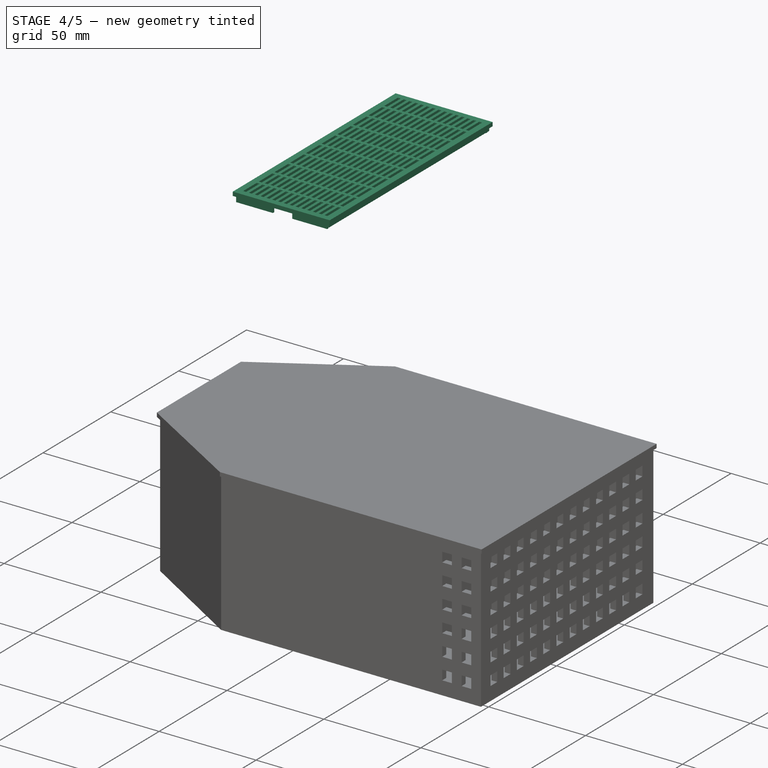
[diagram: stage 4 of 5 — iso view after this stage's code; geometry added in this stage tinted green]
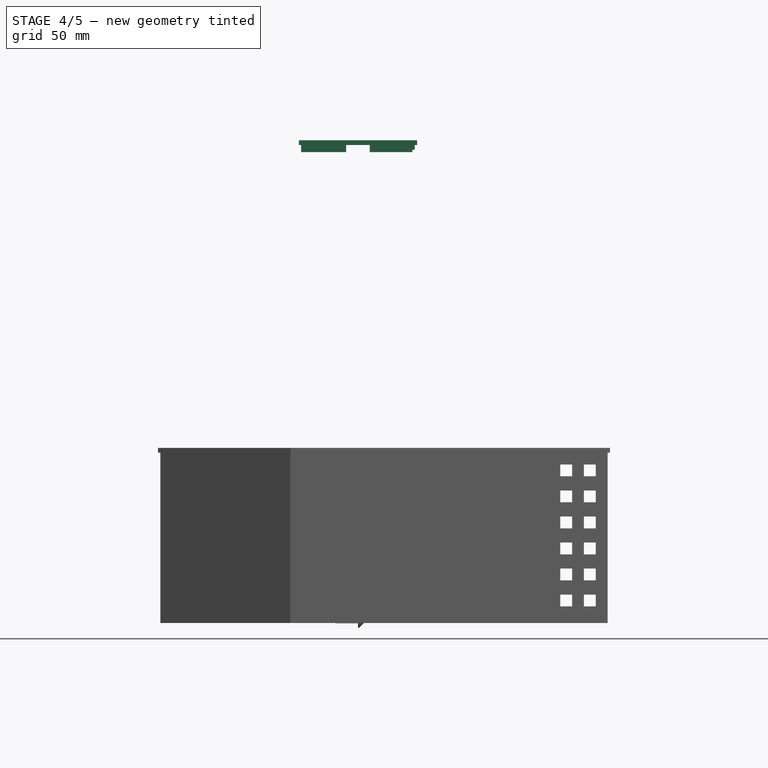
[diagram: stage 4 of 5 — front view after this stage's code; geometry added in this stage tinted green]
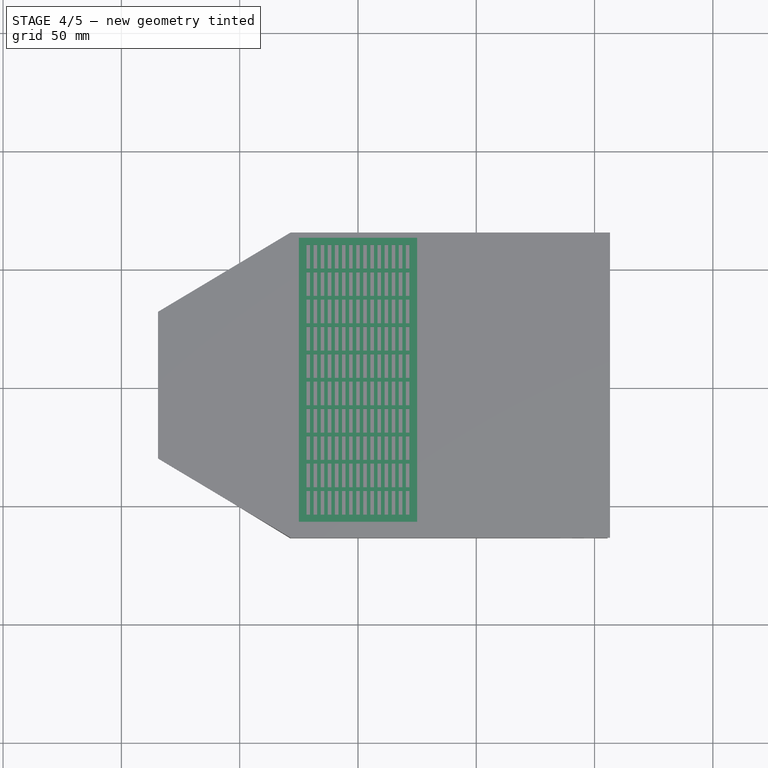
[diagram: stage 4 of 5 — top view after this stage's code; geometry added in this stage tinted green]
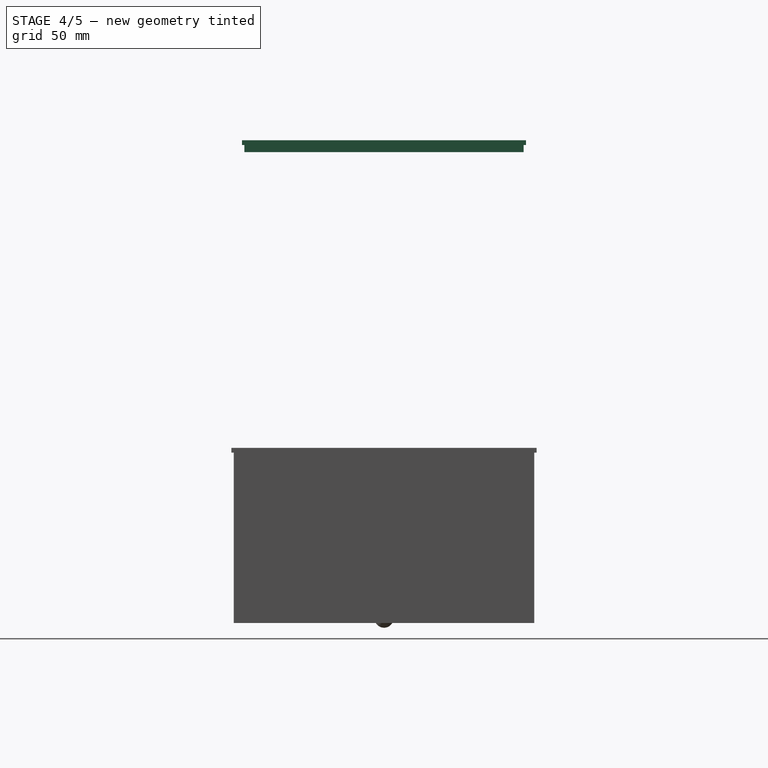
[diagram: stage 4 of 5 — right view after this stage's code; geometry added in this stage tinted green]
FEATURE [Sketcher::SketchObject] Sketch027
  MapMode = 5
  Support = -> [XY_Plane003]
  sketch-geometry (4):
    g0: LineSegment StartX=-25 StartY=60 StartZ=0 EndX=25 EndY=60 EndZ=0
    g1: LineSegment StartX=25 StartY=60 StartZ=0 EndX=25 EndY=-60 EndZ=0
    g2: LineSegment StartX=25 StartY=-60 StartZ=0 EndX=-25 EndY=-60 EndZ=0
    g3: LineSegment StartX=-25 StartY=-60 StartZ=0 EndX=-25 EndY=60 EndZ=0
  constraints (12):
    c: Coincident(g0,g1)
    c: Coincident(g1,g2)
    c: Coincident(g2,g3)
    c: Coincident(g3,g0)
    c: Horizontal(g0)
    c: Horizontal(g2)
    c: Vertical(g1)
    c: Vertical(g3)
    c: DistanceX(g0,g0) = 50
    c: DistanceX(g0,g-1) = 25
    c: DistanceY(g1,g1) = 120
    c: DistanceY(g-1,g0) = 60
FEATURE [PartDesign::Pad] Pad011
  Length = 2
  Length2 = 100
  Profile = -> Sketch027
  Type = 0
FEATURE [Sketcher::SketchObject] Sketch028
  ExternalGeometry = -> [Pad011]
  MapMode = 5
  Placement = pos=(0,0,2) rot=(0,0,1;0rad)
  Support = -> [Pad011]
  sketch-geometry (8):
    g0: LineSegment StartX=-25 StartY=60 StartZ=0 EndX=25 EndY=60 EndZ=0
    g1: LineSegment StartX=25 StartY=60 StartZ=0 EndX=25 EndY=-60 EndZ=0
    g2: LineSegment StartX=25 StartY=-60 StartZ=0 EndX=-25 EndY=-60 EndZ=0
    g3: LineSegment StartX=-25 StartY=-60 StartZ=0 EndX=-25 EndY=60 EndZ=0
    g4: LineSegment StartX=-23 StartY=58 StartZ=0 EndX=23 EndY=58 EndZ=0
    g5: LineSegment StartX=23 StartY=58 StartZ=0 EndX=23 EndY=-58 EndZ=0
    g6: LineSegment StartX=23 StartY=-58 StartZ=0 EndX=-23 EndY=-58 EndZ=0
    g7: LineSegment StartX=-23 StartY=-58 StartZ=0 EndX=-23 EndY=58 EndZ=0
  constraints (22):
    c: Coincident(g0,g1)
    c: Coincident(g1,g2)
    c: Coincident(g2,g3)
    c: Coincident(g3,g0)
    c: Horizontal(g0)
    c: Horizontal(g2)
    c: Vertical(g1)
    c: Vertical(g3)
    c: Coincident(g4,g5)
    c: Coincident(g5,g6)
    c: Coincident(g6,g7)
    c: Coincident(g7,g4)
    c: Horizontal(g4)
    c: Horizontal(g6)
    c: Vertical(g5)
    c: Vertical(g7)
    c: Coincident(g0,g-4)
    c: Coincident(g1,g-3)
    c: DistanceX(g5,g1) = 2
    c: DistanceY(g1,g5) = 2
    c: DistanceY(g4,g0) = 2
    c: DistanceX(g0,g4) = 2
FEATURE [PartDesign::Pad] Pad012
  BaseFeature = -> Pad011
  Length = 33
  Length2 = 100
  Profile = -> Sketch028
  Type = 0
FEATURE [Sketcher::SketchObject] Sketch029
  MapMode = 5
  Placement = pos=(0,0,2) rot=(0,0,1;0rad)
  Support = -> [Pad012]
  sketch-geometry (60):
    g0: LineSegment StartX=-21.75 StartY=57 StartZ=0 EndX=-20.25 EndY=57 EndZ=0
    g1: LineSegment StartX=-20.25 StartY=57 StartZ=0 EndX=-20.25 EndY=47 EndZ=0
    g2: LineSegment StartX=-20.25 StartY=47 StartZ=0 EndX=-21.75 EndY=47 EndZ=0
    g3: LineSegment StartX=-21.75 StartY=47 StartZ=0 EndX=-21.75 EndY=57 EndZ=0
    g4: LineSegment StartX=-18.75 StartY=57 StartZ=0 EndX=-17.25 EndY=57 EndZ=0
    g5: LineSegment StartX=-17.25 StartY=57 StartZ=0 EndX=-17.25 EndY=47 EndZ=0
    g6: LineSegment StartX=-17.25 StartY=47 StartZ=0 EndX=-18.75 EndY=47 EndZ=0
    g7: LineSegment StartX=-18.75 StartY=47 StartZ=0 EndX=-18.75 EndY=57 EndZ=0
    g8: LineSegment StartX=-15.75 StartY=57 StartZ=0 EndX=-14.25 EndY=57 EndZ=0
    g9: LineSegment StartX=-14.25 StartY=57 StartZ=0 EndX=-14.25 EndY=47 EndZ=0
    g10: LineSegment StartX=-14.25 StartY=47 StartZ=0 EndX=-15.75 EndY=47 EndZ=0
    g11: LineSegment StartX=-15.75 StartY=47 StartZ=0 EndX=-15.75 EndY=57 EndZ=0
    g12: LineSegment StartX=-12.75 StartY=57 StartZ=0 EndX=-11.25 EndY=57 EndZ=0
    g13: LineSegment StartX=-11.25 StartY=57 StartZ=0 EndX=-11.25 EndY=47 EndZ=0
    g14: LineSegment StartX=-11.25 StartY=47 StartZ=0 EndX=-12.75 EndY=47 EndZ=0
    g15: LineSegment StartX=-12.75 StartY=47 StartZ=0 EndX=-12.75 EndY=57 EndZ=0
    g16: LineSegment StartX=-9.75 StartY=57 StartZ=0 EndX=-8.25 EndY=57 EndZ=0
    g17: LineSegment StartX=-8.25 StartY=57 StartZ=0 EndX=-8.25 EndY=47 EndZ=0
    g18: LineSegment StartX=-8.25 StartY=47 StartZ=0 EndX=-9.75 EndY=47 EndZ=0
    g19: LineSegment StartX=-9.75 StartY=47 StartZ=0 EndX=-9.75 EndY=57 EndZ=0
    g20: LineSegment StartX=-6.75 StartY=57 StartZ=0 EndX=-5.25 EndY=57 EndZ=0
    g21: LineSegment StartX=-5.25 StartY=57 StartZ=0 EndX=-5.25 EndY=47 EndZ=0
    g22: LineSegment StartX=-5.25 StartY=47 StartZ=0 EndX=-6.75 EndY=47 EndZ=0
    g23: LineSegment StartX=-6.75 StartY=47 StartZ=0 EndX=-6.75 EndY=57 EndZ=0
    g24: LineSegment StartX=-3.75 StartY=57 StartZ=0 EndX=-2.25 EndY=57 EndZ=0
    g25: LineSegment StartX=-2.25 StartY=57 StartZ=0 EndX=-2.25 EndY=47 EndZ=0
    g26: LineSegment StartX=-2.25 StartY=47 StartZ=0 EndX=-3.75 EndY=47 EndZ=0
    g27: LineSegment StartX=-3.75 StartY=47 StartZ=0 EndX=-3.75 EndY=57 EndZ=0
    g28: LineSegment StartX=-0.75 StartY=57 StartZ=0 EndX=0.75 EndY=57 EndZ=0
    g29: LineSegment StartX=0.75 StartY=57 StartZ=0 EndX=0.75 EndY=47 EndZ=0
    g30: LineSegment StartX=0.75 StartY=47 StartZ=0 EndX=-0.75 EndY=47 EndZ=0
    g31: LineSegment StartX=-0.75 StartY=47 StartZ=0 EndX=-0.75 EndY=57 EndZ=0
    g32: LineSegment StartX=2.25 StartY=57 StartZ=0 EndX=3.75 EndY=57 EndZ=0
    g33: LineSegment StartX=3.75 StartY=57 StartZ=0 EndX=3.75 EndY=47 EndZ=0
    g34: LineSegment StartX=3.75 StartY=47 StartZ=0 EndX=2.25 EndY=47 EndZ=0
    g35: LineSegment StartX=2.25 StartY=47 StartZ=0 EndX=2.25 EndY=57 EndZ=0
    g36: LineSegment StartX=5.25 StartY=57 StartZ=0 EndX=6.75 EndY=57 EndZ=0
    g37: LineSegment StartX=6.75 StartY=57 StartZ=0 EndX=6.75 EndY=47 EndZ=0
    g38: LineSegment StartX=6.75 StartY=47 StartZ=0 EndX=5.25 EndY=47 EndZ=0
    g39: LineSegment StartX=5.25 StartY=47 StartZ=0 EndX=5.25 EndY=57 EndZ=0
    g40: LineSegment StartX=8.25 StartY=57 StartZ=0 EndX=9.75 EndY=57 EndZ=0
    g41: LineSegment StartX=9.75 StartY=57 StartZ=0 EndX=9.75 EndY=47 EndZ=0
    g42: LineSegment StartX=9.75 StartY=47 StartZ=0 EndX=8.25 EndY=47 EndZ=0
    g43: LineSegment StartX=8.25 StartY=47 StartZ=0 EndX=8.25 EndY=57 EndZ=0
    g44: LineSegment StartX=11.25 StartY=57 StartZ=0 EndX=12.75 EndY=57 EndZ=0
    g45: LineSegment StartX=12.75 StartY=57 StartZ=0 EndX=12.75 EndY=47 EndZ=0
    g46: LineSegment StartX=12.75 StartY=47 StartZ=0 EndX=11.25 EndY=47 EndZ=0
    g47: LineSegment StartX=11.25 StartY=47 StartZ=0 EndX=11.25 EndY=57 EndZ=0
    g48: LineSegment StartX=14.25 StartY=57 StartZ=0 EndX=15.75 EndY=57 EndZ=0
    g49: LineSegment StartX=15.75 StartY=57 StartZ=0 EndX=15.75 EndY=47 EndZ=0
    g50: LineSegment StartX=15.75 StartY=47 StartZ=0 EndX=14.25 EndY=47 EndZ=0
    g51: LineSegment StartX=14.25 StartY=47 StartZ=0 EndX=14.25 EndY=57 EndZ=0
    g52: LineSegment StartX=17.25 StartY=57 StartZ=0 EndX=18.75 EndY=57 EndZ=0
    g53: LineSegment StartX=18.75 StartY=57 StartZ=0 EndX=18.75 EndY=47 EndZ=0
    g54: LineSegment StartX=18.75 StartY=47 StartZ=0 EndX=17.25 EndY=47 EndZ=0
    g55: LineSegment StartX=17.25 StartY=47 StartZ=0 EndX=17.25 EndY=57 EndZ=0
    g56: LineSegment StartX=20.25 StartY=57 StartZ=0 EndX=21.75 EndY=57 EndZ=0
    g57: LineSegment StartX=21.75 StartY=57 StartZ=0 EndX=21.75 EndY=47 EndZ=0
    g58: LineSegment StartX=21.75 StartY=47 StartZ=0 EndX=20.25 EndY=47 EndZ=0
    g59: LineSegment StartX=20.25 StartY=47 StartZ=0 EndX=20.25 EndY=57 EndZ=0
  constraints (180):
    c: Coincident(g0,g1)
    c: Coincident(g1,g2)
    c: Coincident(g2,g3)
    c: Coincident(g3,g0)
    c: Horizontal(g0)
    c: Horizontal(g2)
    c: Vertical(g1)
    c: Vertical(g3)
    c: Coincident(g4,g5)
    c: Coincident(g5,g6)
    c: Coincident(g6,g7)
    c: Coincident(g7,g4)
    c: Horizontal(g4)
    c: Horizontal(g6)
    c: Vertical(g5)
    c: Vertical(g7)
    c: Coincident(g8,g9)
    c: Coincident(g9,g10)
    c: Coincident(g10,g11)
    c: Coincident(g11,g8)
    c: Horizontal(g8)
    c: Horizontal(g10)
    c: Vertical(g9)
    c: Vertical(g11)
    c: Coincident(g12,g13)
    c: Coincident(g13,g14)
    c: Coincident(g14,g15)
    c: Coincident(g15,g12)
    c: Horizontal(g12)
    c: Horizontal(g14)
    c: Vertical(g13)
    c: Vertical(g15)
    c: Coincident(g16,g17)
    c: Coincident(g17,g18)
    c: Coincident(g18,g19)
    c: Coincident(g19,g16)
    c: Horizontal(g16)
    c: Horizontal(g18)
    c: Vertical(g17)
    c: Vertical(g19)
    c: Coincident(g20,g21)
    c: Coincident(g21,g22)
    c: Coincident(g22,g23)
    c: Coincident(g23,g20)
    c: Horizontal(g20)
    c: Horizontal(g22)
    c: Vertical(g21)
    c: Vertical(g23)
    c: Coincident(g24,g25)
    c: Coincident(g25,g26)
    c: Coincident(g26,g27)
    c: Coincident(g27,g24)
    c: Horizontal(g24)
    c: Horizontal(g26)
    c: Vertical(g25)
    c: Vertical(g27)
    c: Coincident(g28,g29)
    c: Coincident(g29,g30)
    c: Coincident(g30,g31)
    c: Coincident(g31,g28)
    c: Horizontal(g28)
    c: Horizontal(g30)
    c: Vertical(g29)
    c: Vertical(g31)
    c: Coincident(g32,g33)
    c: Coincident(g33,g34)
    c: Coincident(g34,g35)
    c: Coincident(g35,g32)
    c: Horizontal(g32)
    c: Horizontal(g34)
    c: Vertical(g33)
    c: Vertical(g35)
    c: Coincident(g36,g37)
    c: Coincident(g37,g38)
    c: Coincident(g38,g39)
    c: Coincident(g39,g36)
    c: Horizontal(g36)
    c: Horizontal(g38)
    c: Vertical(g37)
    c: Vertical(g39)
    c: Coincident(g40,g41)
    c: Coincident(g41,g42)
    c: Coincident(g42,g43)
    c: Coincident(g43,g40)
    c: Horizontal(g40)
    c: Horizontal(g42)
    c: Vertical(g41)
    c: Vertical(g43)
    c: DistanceX(g0,g0) = 1.5
    c: DistanceX(g0,g4) = 1.5
    c: DistanceX(g4,g4) = 1.5
    c: DistanceX(g4,g8) = 1.5
    c: DistanceX(g8,g8) = 1.5
    c: DistanceX(g8,g12) = 1.5
    c: DistanceX(g12,g12) = 1.5
    c: DistanceX(g12,g16) = 1.5
    c: DistanceX(g16,g16) = 1.5
    c: DistanceX(g16,g20) = 1.5
    c: DistanceX(g20,g20) = 1.5
    c: DistanceX(g20,g24) = 1.5
    c: DistanceX(g24,g24) = 1.5
    c: DistanceX(g24,g28) = 1.5
    c: DistanceX(g28,g28) = 1.5
    c: DistanceX(g28,g32) = 1.5
    c: DistanceX(g32,g32) = 1.5
    c: DistanceX(g32,g36) = 1.5
    c: DistanceX(g36,g36) = 1.5
    c: DistanceX(g36,g40) = 1.5
    c: DistanceX(g40,g40) = 1.5
    c: DistanceX(g0,g-1) = 21.75
    c: Coincident(g44,g45)
    c: Coincident(g45,g46)
    c: Coincident(g46,g47)
    c: Coincident(g47,g44)
    c: Horizontal(g44)
    c: Horizontal(g46)
    c: Vertical(g45)
    c: Vertical(g47)
    c: Coincident(g48,g49)
    c: Coincident(g49,g50)
    c: Coincident(g50,g51)
    c: Coincident(g51,g48)
    c: Horizontal(g48)
    c: Horizontal(g50)
    c: Vertical(g49)
    c: Vertical(g51)
    c: Coincident(g52,g53)
    c: Coincident(g53,g54)
    c: Coincident(g54,g55)
    c: Coincident(g55,g52)
    c: Horizontal(g52)
    c: Horizontal(g54)
    c: Vertical(g53)
    c: Vertical(g55)
    c: Coincident(g56,g57)
    c: Coincident(g57,g58)
    c: Coincident(g58,g59)
    c: Coincident(g59,g56)
    c: Horizontal(g56)
    c: Horizontal(g58)
    c: Vertical(g57)
    c: Vertical(g59)
    c: DistanceX(g40,g44) = 1.5
    c: DistanceX(g44,g44) = 1.5
    c: DistanceX(g44,g48) = 1.5
    c: DistanceX(g48,g48) = 1.5
    c: DistanceX(g48,g52) = 1.5
    c: DistanceX(g52,g52) = 1.5
    c: DistanceX(g52,g56) = 1.5
    c: DistanceX(g56,g56) = 1.5
    c: PointOnObject(g4,g0)
    c: PointOnObject(g4,g8)
    c: PointOnObject(g8,g12)
    c: PointOnObject(g12,g16)
    c: PointOnObject(g16,g20)
    c: PointOnObject(g20,g24)
    c: PointOnObject(g24,g28)
    c: PointOnObject(g28,g32)
    c: PointOnObject(g32,g36)
    c: PointOnObject(g36,g40)
    c: PointOnObject(g44,g40)
    c: PointOnObject(g44,g48)
    c: PointOnObject(g48,g52)
    c: PointOnObject(g52,g56)
    c: DistanceY(g1,g1) = 10
    c: PointOnObject(g1,g6)
    c: PointOnObject(g5,g10)
    c: PointOnObject(g9,g14)
    c: PointOnObject(g13,g18)
    c: PointOnObject(g17,g22)
    c: PointOnObject(g21,g26)
    c: PointOnObject(g25,g30)
    c: PointOnObject(g29,g34)
    c: PointOnObject(g33,g38)
    c: PointOnObject(g37,g42)
    c: PointOnObject(g41,g46)
    c: PointOnObject(g45,g50)
    c: PointOnObject(g49,g54)
    c: PointOnObject(g53,g58)
    c: DistanceY(g-1,g0) = 57
FEATURE [PartDesign::Pocket] Pocket012
  BaseFeature = -> Pad012
  Length = 2
  Length2 = 100
  Profile = -> Sketch029
  Type = 0
FEATURE [PartDesign::LinearPattern] LinearPattern002
  BaseFeature = -> Pocket012
  Direction = -> Y_Axis003
  Length = 104
  Occurrences = 10
  Originals = -> [Pocket012]
  Reversed = true
FEATURE [PartDesign::Body] Body004  label="container"
  BaseFeature = -> Fusion002
  Group = -> [BaseFeature001,Sketch034,Pocket014,Sketch035,Pocket015]
  Origin = -> Origin004
  Placement = pos=(0,0,-78) rot=(0,0,1;0rad)
  Tip = -> Pocket015
FEATURE [Sketcher::SketchObject] Sketch036
  AttachmentOffset = pos=(0,0,200) rot=(0,0,1;0rad)
  MapMode = 5
  Placement = pos=(0,0,200) rot=(0,0,1;0rad)
  Support = -> [XY_Plane005]
  sketch-geometry (4):
    g0: LineSegment StartX=-25 StartY=60 StartZ=0 EndX=25 EndY=60 EndZ=0
    g1: LineSegment StartX=25 StartY=60 StartZ=0 EndX=25 EndY=-60 EndZ=0
    g2: LineSegment StartX=25 StartY=-60 StartZ=0 EndX=-25 EndY=-60 EndZ=0
    g3: LineSegment StartX=-25 StartY=-60 StartZ=0 EndX=-25 EndY=60 EndZ=0
  constraints (12):
    c: Coincident(g0,g1)
    c: Coincident(g1,g2)
    c: Coincident(g2,g3)
    c: Coincident(g3,g0)
    c: Horizontal(g0)
    c: Horizontal(g2)
    c: Vertical(g1)
    c: Vertical(g3)
    c: DistanceX(g0,g0) = 50
    c: DistanceX(g0,g-1) = 25
    c: DistanceY(g1,g1) = 120
    c: DistanceY(g-1,g0) = 60
FEATURE [PartDesign::Pad] Pad014
  Length = 2
  Length2 = 100
  Profile = -> Sketch036
  Type = 0
FEATURE [Sketcher::SketchObject] Sketch037
  ExternalGeometry = -> [Pad014]
  MapMode = 5
  Placement = pos=(0,0,200) rot=(1,0,0;3.14159rad)
  Support = -> [Pad014]
  sketch-geometry (16):
    g0: LineSegment StartX=-24 StartY=59 StartZ=0 EndX=-5 EndY=59 EndZ=0
    g1: LineSegment StartX=-5 StartY=59 StartZ=0 EndX=-5 EndY=58 EndZ=0
    g2: LineSegment StartX=-5 StartY=58 StartZ=0 EndX=-23 EndY=58 EndZ=0
    g3: LineSegment StartX=-23 StartY=58 StartZ=0 EndX=-23 EndY=-58 EndZ=0
    g4: LineSegment StartX=-23 StartY=-58 StartZ=0 EndX=-5 EndY=-58 EndZ=0
    g5: LineSegment StartX=-5 StartY=-58 StartZ=0 EndX=-5 EndY=-59 EndZ=0
    g6: LineSegment StartX=-5 StartY=-59 StartZ=0 EndX=-24 EndY=-59 EndZ=0
    g7: LineSegment StartX=-24 StartY=-59 StartZ=0 EndX=-24 EndY=59 EndZ=0
    g8: LineSegment StartX=5 StartY=-58 StartZ=0 EndX=23 EndY=-58 EndZ=0
    g9: LineSegment StartX=23 StartY=-58 StartZ=0 EndX=23 EndY=-59 EndZ=0
    g10: LineSegment StartX=23 StartY=-59 StartZ=0 EndX=5 EndY=-59 EndZ=0
    g11: LineSegment StartX=5 StartY=-59 StartZ=0 EndX=5 EndY=-58 EndZ=0
    g12: LineSegment StartX=5 StartY=59 StartZ=0 EndX=23 EndY=59 EndZ=0
    g13: LineSegment StartX=23 StartY=59 StartZ=0 EndX=23 EndY=58 EndZ=0
    g14: LineSegment StartX=23 StartY=58 StartZ=0 EndX=5 EndY=58 EndZ=0
    g15: LineSegment StartX=5 StartY=58 StartZ=0 EndX=5 EndY=59 EndZ=0
  constraints (48):
    c: Horizontal(g0)
    c: Coincident(g0,g1)
    c: Vertical(g1)
    c: Coincident(g1,g2)
    c: Horizontal(g2)
    c: Coincident(g2,g3)
    c: Vertical(g3)
    c: Coincident(g3,g4)
    c: Horizontal(g4)
    c: Coincident(g4,g5)
    c: Vertical(g5)
    c: Coincident(g5,g6)
    c: Horizontal(g6)
    c: Coincident(g6,g7)
    c: Coincident(g7,g0)
    c: Vertical(g7)
    c: DistanceX(g-3,g0) = 1
    c: DistanceX(g0,g2) = 1
    c: DistanceY(g0,g-3) = 1
    c: DistanceY(g2,g0) = 1
    c: DistanceX(g0,g0) = 19
    c: DistanceX(g6,g6) = 19
    c: DistanceY(g6,g3) = 1
    c: DistanceY(g7,g7) = 118
    c: Coincident(g8,g9)
    c: Coincident(g9,g10)
    c: Coincident(g10,g11)
    c: Coincident(g11,g8)
    c: Horizontal(g8)
    c: Horizontal(g10)
    c: Vertical(g9)
    c: Vertical(g11)
    c: DistanceX(g9,g-4) = 2
    c: DistanceX(g10,g10) = 18
    c: DistanceY(g9,g9) = 1
    c: DistanceY(g-4,g9) = 1
    c: Coincident(g12,g13)
    c: Coincident(g13,g14)
    c: Coincident(g14,g15)
    c: Coincident(g15,g12)
    c: Horizontal(g12)
    c: Horizontal(g14)
    c: Vertical(g13)
    c: Vertical(g15)
    c: DistanceX(g12,g-3) = 2
    c: DistanceX(g12,g12) = 18
    c: DistanceY(g13,g13) = 1
    c: DistanceY(g12,g-3) = 1
FEATURE [PartDesign::Pad] Pad015
  BaseFeature = -> Pad014
  Length = 3
  Length2 = 100
  Profile = -> Sketch037
  Type = 0
FEATURE [Sketcher::SketchObject] Sketch038
  ExternalGeometry = -> [Pad015]
  MapMode = 5
  Placement = pos=(0,0,200) rot=(1,0,0;3.14159rad)
  Support = -> [Pad015]
  sketch-geometry (4):
    g0: LineSegment StartX=23 StartY=59 StartZ=0 EndX=24 EndY=59 EndZ=0
    g1: LineSegment StartX=24 StartY=59 StartZ=0 EndX=24 EndY=-59 EndZ=0
    g2: LineSegment StartX=24 StartY=-59 StartZ=0 EndX=23 EndY=-59 EndZ=0
    g3: LineSegment StartX=23 StartY=-59 StartZ=0 EndX=23 EndY=59 EndZ=0
  constraints (11):
    c: Coincident(g0,g1)
    c: Coincident(g1,g2)
    c: Coincident(g2,g3)
    c: Coincident(g3,g0)
    c: Horizontal(g0)
    c: Horizontal(g2)
    c: Vertical(g1)
    c: Vertical(g3)
    c: Coincident(g3,g-3)
    c: PointOnObject(g0,g-4)
    c: DistanceX(g0,g0) = 1
FEATURE [PartDesign::Pad] Pad016
  BaseFeature = -> Pad015
  Length = 2
  Length2 = 100
  Profile = -> Sketch038
  Type = 0
FEATURE [Sketcher::SketchObject] Sketch039
  ExternalGeometry = -> [Pad016]
  MapMode = 5
  Placement = pos=(0,0,202) rot=(0,0,1;0rad)
  Support = -> [Pad016]
  sketch-geometry (60):
    g0: LineSegment StartX=-21.75 StartY=57 StartZ=0 EndX=-20.25 EndY=57 EndZ=0
    g1: LineSegment StartX=-20.25 StartY=57 StartZ=0 EndX=-20.25 EndY=47 EndZ=0
    g2: LineSegment StartX=-20.25 StartY=47 StartZ=0 EndX=-21.75 EndY=47 EndZ=0
    g3: LineSegment StartX=-21.75 StartY=47 StartZ=0 EndX=-21.75 EndY=57 EndZ=0
    g4: LineSegment StartX=-18.75 StartY=57 StartZ=0 EndX=-17.25 EndY=57 EndZ=0
    g5: LineSegment StartX=-17.25 StartY=57 StartZ=0 EndX=-17.25 EndY=47 EndZ=0
    g6: LineSegment StartX=-17.25 StartY=47 StartZ=0 EndX=-18.75 EndY=47 EndZ=0
    g7: LineSegment StartX=-18.75 StartY=47 StartZ=0 EndX=-18.75 EndY=57 EndZ=0
    g8: LineSegment StartX=-15.75 StartY=57 StartZ=0 EndX=-14.25 EndY=57 EndZ=0
    g9: LineSegment StartX=-14.25 StartY=57 StartZ=0 EndX=-14.25 EndY=47 EndZ=0
    g10: LineSegment StartX=-14.25 StartY=47 StartZ=0 EndX=-15.75 EndY=47 EndZ=0
    g11: LineSegment StartX=-15.75 StartY=47 StartZ=0 EndX=-15.75 EndY=57 EndZ=0
    g12: LineSegment StartX=-12.75 StartY=57 StartZ=0 EndX=-11.25 EndY=57 EndZ=0
    g13: LineSegment StartX=-11.25 StartY=57 StartZ=0 EndX=-11.25 EndY=47 EndZ=0
    g14: LineSegment StartX=-11.25 StartY=47 StartZ=0 EndX=-12.75 EndY=47 EndZ=0
    g15: LineSegment StartX=-12.75 StartY=47 StartZ=0 EndX=-12.75 EndY=57 EndZ=0
    g16: LineSegment StartX=-9.75 StartY=57 StartZ=0 EndX=-8.25 EndY=57 EndZ=0
    g17: LineSegment StartX=-8.25 StartY=57 StartZ=0 EndX=-8.25 EndY=47 EndZ=0
    g18: LineSegment StartX=-8.25 StartY=47 StartZ=0 EndX=-9.75 EndY=47 EndZ=0
    g19: LineSegment StartX=-9.75 StartY=47 StartZ=0 EndX=-9.75 EndY=57 EndZ=0
    g20: LineSegment StartX=-6.75 StartY=57 StartZ=0 EndX=-5.25 EndY=57 EndZ=0
    g21: LineSegment StartX=-5.25 StartY=57 StartZ=0 EndX=-5.25 EndY=47 EndZ=0
    g22: LineSegment StartX=-5.25 StartY=47 StartZ=0 EndX=-6.75 EndY=47 EndZ=0
    g23: LineSegment StartX=-6.75 StartY=47 StartZ=0 EndX=-6.75 EndY=57 EndZ=0
    g24: LineSegment StartX=-3.75 StartY=57 StartZ=0 EndX=-2.25 EndY=57 EndZ=0
    g25: LineSegment StartX=-2.25 StartY=57 StartZ=0 EndX=-2.25 EndY=47 EndZ=0
    g26: LineSegment StartX=-2.25 StartY=47 StartZ=0 EndX=-3.75 EndY=47 EndZ=0
    g27: LineSegment StartX=-3.75 StartY=47 StartZ=0 EndX=-3.75 EndY=57 EndZ=0
    g28: LineSegment StartX=-0.75 StartY=57 StartZ=0 EndX=0.75 EndY=57 EndZ=0
    g29: LineSegment StartX=0.75 StartY=57 StartZ=0 EndX=0.75 EndY=47 EndZ=0
    g30: LineSegment StartX=0.75 StartY=47 StartZ=0 EndX=-0.75 EndY=47 EndZ=0
    g31: LineSegment StartX=-0.75 StartY=47 StartZ=0 EndX=-0.75 EndY=57 EndZ=0
    g32: LineSegment StartX=2.25 StartY=57 StartZ=0 EndX=3.75 EndY=57 EndZ=0
    g33: LineSegment StartX=3.75 StartY=57 StartZ=0 EndX=3.75 EndY=47 EndZ=0
    g34: LineSegment StartX=3.75 StartY=47 StartZ=0 EndX=2.25 EndY=47 EndZ=0
    g35: LineSegment StartX=2.25 StartY=47 StartZ=0 EndX=2.25 EndY=57 EndZ=0
    g36: LineSegment StartX=5.25 StartY=57 StartZ=0 EndX=6.75 EndY=57 EndZ=0
    g37: LineSegment StartX=6.75 StartY=57 StartZ=0 EndX=6.75 EndY=47 EndZ=0
    g38: LineSegment StartX=6.75 StartY=47 StartZ=0 EndX=5.25 EndY=47 EndZ=0
    g39: LineSegment StartX=5.25 StartY=47 StartZ=0 EndX=5.25 EndY=57 EndZ=0
    g40: LineSegment StartX=8.25 StartY=57 StartZ=0 EndX=9.75 EndY=57 EndZ=0
    g41: LineSegment StartX=9.75 StartY=57 StartZ=0 EndX=9.75 EndY=47 EndZ=0
    g42: LineSegment StartX=9.75 StartY=47 StartZ=0 EndX=8.25 EndY=47 EndZ=0
    g43: LineSegment StartX=8.25 StartY=47 StartZ=0 EndX=8.25 EndY=57 EndZ=0
    g44: LineSegment StartX=11.25 StartY=57 StartZ=0 EndX=12.75 EndY=57 EndZ=0
    g45: LineSegment StartX=12.75 StartY=57 StartZ=0 EndX=12.75 EndY=47 EndZ=0
    g46: LineSegment StartX=12.75 StartY=47 StartZ=0 EndX=11.25 EndY=47 EndZ=0
    g47: LineSegment StartX=11.25 StartY=47 StartZ=0 EndX=11.25 EndY=57 EndZ=0
    g48: LineSegment StartX=14.25 StartY=57 StartZ=0 EndX=15.75 EndY=57 EndZ=0
    g49: LineSegment StartX=15.75 StartY=57 StartZ=0 EndX=15.75 EndY=47 EndZ=0
    g50: LineSegment StartX=15.75 StartY=47 StartZ=0 EndX=14.25 EndY=47 EndZ=0
    g51: LineSegment StartX=14.25 StartY=47 StartZ=0 EndX=14.25 EndY=57 EndZ=0
    g52: LineSegment StartX=17.25 StartY=57 StartZ=0 EndX=18.75 EndY=57 EndZ=0
    g53: LineSegment StartX=18.75 StartY=57 StartZ=0 EndX=18.75 EndY=47 EndZ=0
    g54: LineSegment StartX=18.75 StartY=47 StartZ=0 EndX=17.25 EndY=47 EndZ=0
    g55: LineSegment StartX=17.25 StartY=47 StartZ=0 EndX=17.25 EndY=57 EndZ=0
    g56: LineSegment StartX=20.25 StartY=57 StartZ=0 EndX=21.75 EndY=57 EndZ=0
    g57: LineSegment StartX=21.75 StartY=57 StartZ=0 EndX=21.75 EndY=47 EndZ=0
    g58: LineSegment StartX=21.75 StartY=47 StartZ=0 EndX=20.25 EndY=47 EndZ=0
    g59: LineSegment StartX=20.25 StartY=47 StartZ=0 EndX=20.25 EndY=57 EndZ=0
  constraints (180):
    c: Coincident(g0,g1)
    c: Coincident(g1,g2)
    c: Coincident(g2,g3)
    c: Coincident(g3,g0)
    c: Horizontal(g0)
    c: Horizontal(g2)
    c: Vertical(g1)
    c: Vertical(g3)
    c: Coincident(g4,g5)
    c: Coincident(g5,g6)
    c: Coincident(g6,g7)
    c: Coincident(g7,g4)
    c: Horizontal(g4)
    c: Horizontal(g6)
    c: Vertical(g5)
    c: Vertical(g7)
    c: Coincident(g8,g9)
    c: Coincident(g9,g10)
    c: Coincident(g10,g11)
    c: Coincident(g11,g8)
    c: Horizontal(g8)
    c: Horizontal(g10)
    c: Vertical(g9)
    c: Vertical(g11)
    c: Coincident(g12,g13)
    c: Coincident(g13,g14)
    c: Coincident(g14,g15)
    c: Coincident(g15,g12)
    c: Horizontal(g12)
    c: Horizontal(g14)
    c: Vertical(g13)
    c: Vertical(g15)
    c: Coincident(g16,g17)
    c: Coincident(g17,g18)
    c: Coincident(g18,g19)
    c: Coincident(g19,g16)
    c: Horizontal(g16)
    c: Horizontal(g18)
    c: Vertical(g17)
    c: Vertical(g19)
    c: Coincident(g20,g21)
    c: Coincident(g21,g22)
    c: Coincident(g22,g23)
    c: Coincident(g23,g20)
    c: Horizontal(g20)
    c: Horizontal(g22)
    c: Vertical(g21)
    c: Vertical(g23)
    c: Coincident(g24,g25)
    c: Coincident(g25,g26)
    c: Coincident(g26,g27)
    c: Coincident(g27,g24)
    c: Horizontal(g24)
    c: Horizontal(g26)
    c: Vertical(g25)
    c: Vertical(g27)
    c: Coincident(g28,g29)
    c: Coincident(g29,g30)
    c: Coincident(g30,g31)
    c: Coincident(g31,g28)
    c: Horizontal(g28)
    c: Horizontal(g30)
    c: Vertical(g29)
    c: Vertical(g31)
    c: Coincident(g32,g33)
    c: Coincident(g33,g34)
    c: Coincident(g34,g35)
    c: Coincident(g35,g32)
    c: Horizontal(g32)
    c: Horizontal(g34)
    c: Vertical(g33)
    c: Vertical(g35)
    c: Coincident(g36,g37)
    c: Coincident(g37,g38)
    c: Coincident(g38,g39)
    c: Coincident(g39,g36)
    c: Horizontal(g36)
    c: Horizontal(g38)
    c: Vertical(g37)
    c: Vertical(g39)
    c: Coincident(g40,g41)
    c: Coincident(g41,g42)
    c: Coincident(g42,g43)
    c: Coincident(g43,g40)
    c: Horizontal(g40)
    c: Horizontal(g42)
    c: Vertical(g41)
    c: Vertical(g43)
    c: Coincident(g44,g45)
    c: Coincident(g45,g46)
    c: Coincident(g46,g47)
    c: Coincident(g47,g44)
    c: Horizontal(g44)
    c: Horizontal(g46)
    c: Vertical(g45)
    c: Vertical(g47)
    c: Coincident(g48,g49)
    c: Coincident(g49,g50)
    c: Coincident(g50,g51)
    c: Coincident(g51,g48)
    c: Horizontal(g48)
    c: Horizontal(g50)
    c: Vertical(g49)
    c: Vertical(g51)
    c: Coincident(g52,g53)
    c: Coincident(g53,g54)
    c: Coincident(g54,g55)
    c: Coincident(g55,g52)
    c: Horizontal(g52)
    c: Horizontal(g54)
    c: Vertical(g53)
    c: Vertical(g55)
    c: Coincident(g56,g57)
    c: Coincident(g57,g58)
    c: Coincident(g58,g59)
    c: Coincident(g59,g56)
    c: Horizontal(g56)
    c: Horizontal(g58)
    c: Vertical(g57)
    c: Vertical(g59)
    c: DistanceX(g-3,g0) = 3.25
    c: DistanceX(g0,g0) = 1.5
    c: DistanceX(g0,g4) = 1.5
    c: DistanceX(g4,g4) = 1.5
    c: DistanceX(g4,g8) = 1.5
    c: DistanceX(g8,g8) = 1.5
    c: DistanceX(g8,g12) = 1.5
    c: DistanceX(g12,g12) = 1.5
    c: DistanceX(g12,g16) = 1.5
    c: DistanceX(g16,g16) = 1.5
    c: DistanceX(g16,g20) = 1.5
    c: DistanceX(g20,g20) = 1.5
    c: DistanceX(g20,g24) = 1.5
    c: DistanceX(g24,g24) = 1.5
    c: DistanceX(g24,g28) = 1.5
    c: DistanceX(g28,g28) = 1.5
    c: DistanceX(g28,g32) = 1.5
    c: DistanceX(g32,g32) = 1.5
    c: DistanceX(g32,g36) = 1.5
    c: DistanceX(g36,g36) = 1.5
    c: DistanceX(g36,g40) = 1.5
    c: DistanceX(g40,g40) = 1.5
    c: DistanceX(g40,g44) = 1.5
    c: DistanceX(g44,g44) = 1.5
    c: DistanceX(g44,g48) = 1.5
    c: DistanceX(g48,g48) = 1.5
    c: DistanceX(g48,g52) = 1.5
    c: DistanceX(g52,g52) = 1.5
    c: DistanceX(g52,g56) = 1.5
    c: DistanceX(g56,g56) = 1.5
    c: DistanceY(g0,g-3) = 3
    c: PointOnObject(g0,g4)
    c: PointOnObject(g4,g8)
    c: PointOnObject(g8,g12)
    c: PointOnObject(g12,g16)
    c: PointOnObject(g16,g20)
    c: PointOnObject(g20,g24)
    c: PointOnObject(g24,g28)
    c: PointOnObject(g28,g32)
    c: PointOnObject(g32,g36)
    c: PointOnObject(g36,g40)
    c: PointOnObject(g40,g44)
    c: PointOnObject(g44,g48)
    c: PointOnObject(g48,g52)
    c: PointOnObject(g52,g56)
    c: DistanceY(g3,g3) = 10
    c: PointOnObject(g1,g6)
    c: PointOnObject(g5,g10)
    c: PointOnObject(g9,g14)
    c: PointOnObject(g13,g18)
    c: PointOnObject(g17,g22)
    c: PointOnObject(g21,g26)
    c: PointOnObject(g25,g30)
    c: PointOnObject(g29,g34)
    c: PointOnObject(g33,g38)
    c: PointOnObject(g37,g42)
    c: PointOnObject(g41,g46)
    c: PointOnObject(g45,g50)
    c: PointOnObject(g49,g54)
    c: PointOnObject(g53,g58)
FEATURE [PartDesign::Pocket] Pocket016
  BaseFeature = -> Pad016
  Length = 2
  Length2 = 100
  Profile = -> Sketch039
  Type = 0
FEATURE [PartDesign::LinearPattern] LinearPattern004
  BaseFeature = -> Pocket016
  Direction = -> Y_Axis005
  Length = 104
  Occurrences = 10
  Originals = -> [Pocket016]
  Reversed = true
FEATURE [Sketcher::SketchObject] Sketch050
  ExternalGeometry = -> [Pocket023]
  MapMode = 5
  Placement = pos=(0,0,70) rot=(0,0,1;0rad)
  Support = -> [Pocket023]
  sketch-geometry (4):
    g0: LineSegment StartX=-25.5 StartY=61.5 StartZ=0 EndX=80.5 EndY=61.5 EndZ=0
    g1: LineSegment StartX=80.5 StartY=61.5 StartZ=0 EndX=80.5 EndY=-61.5 EndZ=0
    g2: LineSegment StartX=80.5 StartY=-61.5 StartZ=0 EndX=-25.5 EndY=-61.5 EndZ=0
    g3: LineSegment StartX=-25.5 StartY=-61.5 StartZ=0 EndX=-25.5 EndY=61.5 EndZ=0
  constraints (12):
    c: Horizontal(g0)
    c: Coincident(g0,g1)
    c: Vertical(g1)
    c: Coincident(g1,g2)
    c: Horizontal(g2)
    c: Coincident(g2,g3)
    c: Coincident(g3,g0)
    c: Vertical(g3)
    c: PointOnObject(g-3,g3)
    c: DistanceX(g-4,g0) = 1
    c: DistanceY(g-4,g0) = 1
    c: DistanceY(g1,g-4) = 1
FEATURE [PartDesign::Pocket] Pocket024
  BaseFeature = -> Pocket023
  Length = 7
  Length2 = 100
  Profile = -> Sketch050
  Type = 0
FEATURE [Sketcher::SketchObject] Sketch051
  ExternalGeometry = -> [Pocket024]
  MapMode = 5
  Placement = pos=(0,0,70) rot=(0,0,1;0rad)
  Support = -> [Pocket024]
  sketch-geometry (4):
    g0: LineSegment StartX=82.5 StartY=61.5 StartZ=0 EndX=103.5 EndY=61.5 EndZ=0
    g1: LineSegment StartX=103.5 StartY=61.5 StartZ=0 EndX=103.5 EndY=-61.5 EndZ=0
    g2: LineSegment StartX=103.5 StartY=-61.5 StartZ=0 EndX=82.5 EndY=-61.5 EndZ=0
    g3: LineSegment StartX=82.5 StartY=-61.5 StartZ=0 EndX=82.5 EndY=61.5 EndZ=0
  constraints (12):
    c: Coincident(g0,g1)
    c: Coincident(g1,g2)
    c: Coincident(g2,g3)
    c: Coincident(g3,g0)
    c: Horizontal(g0)
    c: Horizontal(g2)
    c: Vertical(g1)
    c: Vertical(g3)
    c: PointOnObject(g-4,g3)
    c: DistanceX(g-4,g1) = 1
    c: DistanceY(g1,g-4) = 1
    c: DistanceY(g-3,g0) = 1
FEATURE [PartDesign::Pocket] Pocket025
  BaseFeature = -> Pocket024
  Length = 3
  Length2 = 100
  Profile = -> Sketch051
  Type = 0
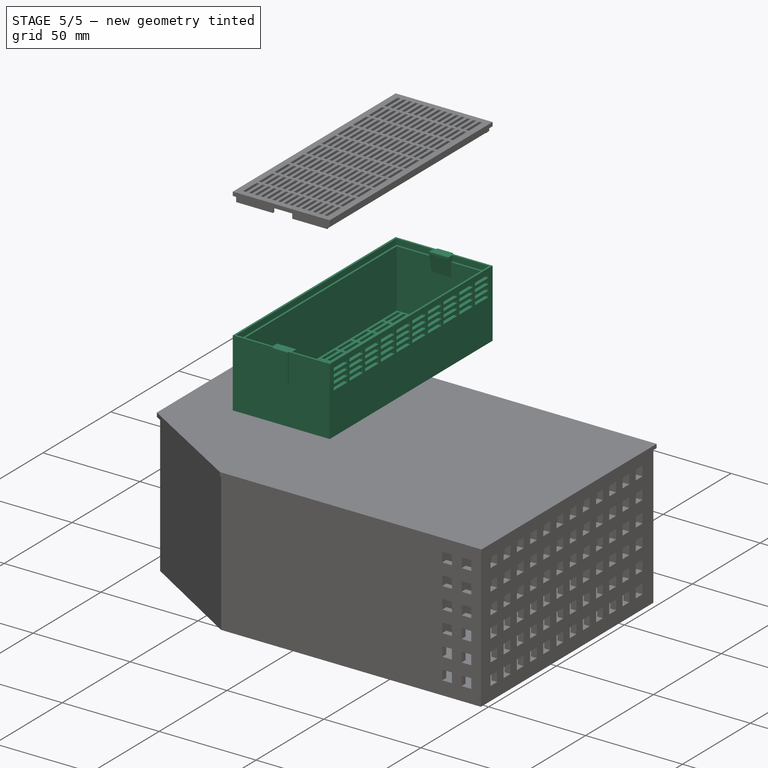
[diagram: stage 5 of 5 — iso view after this stage's code; geometry added in this stage tinted green]
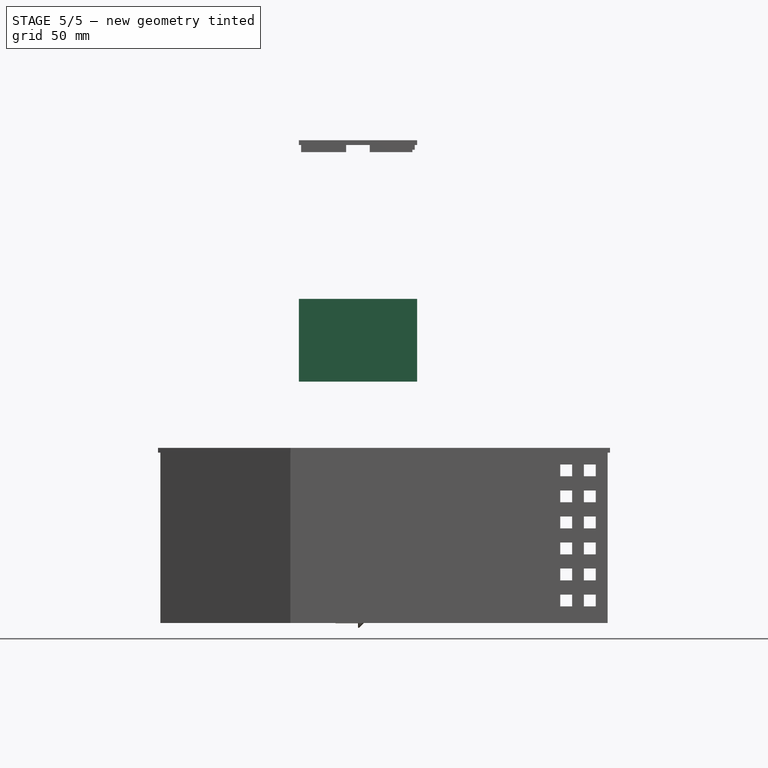
[diagram: stage 5 of 5 — front view after this stage's code; geometry added in this stage tinted green]
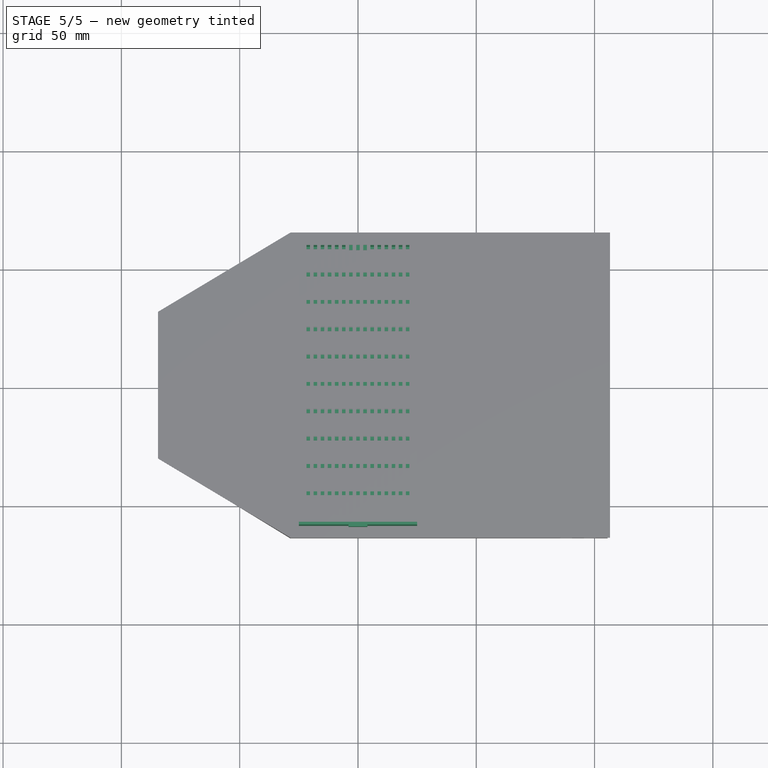
[diagram: stage 5 of 5 — top view after this stage's code; geometry added in this stage tinted green]
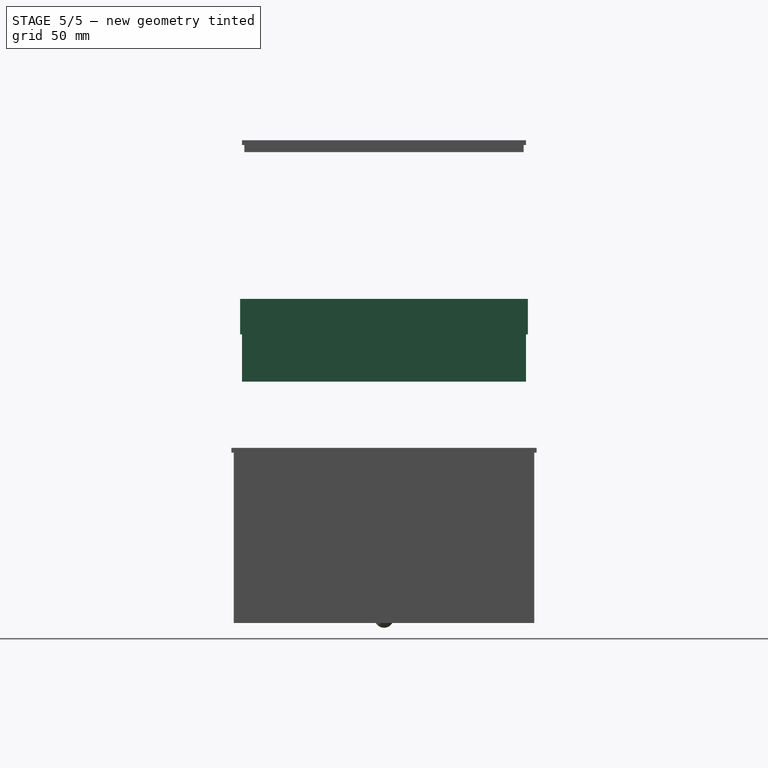
[diagram: stage 5 of 5 — right view after this stage's code; geometry added in this stage tinted green]
FEATURE [Sketcher::SketchObject] Sketch030
  MapMode = 5
  Placement = pos=(25,0,0) rot=(0.57735,0.57735,0.57735;2.0944rad)
  Support = -> [LinearPattern002]
  sketch-geometry (16):
    g0: LineSegment StartX=-57 StartY=32 StartZ=0 EndX=-47 EndY=32 EndZ=0
    g1: LineSegment StartX=-47 StartY=32 StartZ=0 EndX=-47 EndY=30.5 EndZ=0
    g2: LineSegment StartX=-47 StartY=30.5 StartZ=0 EndX=-57 EndY=30.5 EndZ=0
    g3: LineSegment StartX=-57 StartY=30.5 StartZ=0 EndX=-57 EndY=32 EndZ=0
    g4: LineSegment StartX=-57 StartY=29 StartZ=0 EndX=-47 EndY=29 EndZ=0
    g5: LineSegment StartX=-47 StartY=29 StartZ=0 EndX=-47 EndY=27.5 EndZ=0
    g6: LineSegment StartX=-47 StartY=27.5 StartZ=0 EndX=-57 EndY=27.5 EndZ=0
    g7: LineSegment StartX=-57 StartY=27.5 StartZ=0 EndX=-57 EndY=29 EndZ=0
    g8: LineSegment StartX=-57 StartY=26 StartZ=0 EndX=-47 EndY=26 EndZ=0
    g9: LineSegment StartX=-47 StartY=26 StartZ=0 EndX=-47 EndY=24.5 EndZ=0
    g10: LineSegment StartX=-47 StartY=24.5 StartZ=0 EndX=-57 EndY=24.5 EndZ=0
    g11: LineSegment StartX=-57 StartY=24.5 StartZ=0 EndX=-57 EndY=26 EndZ=0
    g12: LineSegment StartX=-57 StartY=23 StartZ=0 EndX=-47 EndY=23 EndZ=0
    g13: LineSegment StartX=-47 StartY=23 StartZ=0 EndX=-47 EndY=21.5 EndZ=0
    g14: LineSegment StartX=-47 StartY=21.5 StartZ=0 EndX=-57 EndY=21.5 EndZ=0
    g15: LineSegment StartX=-57 StartY=21.5 StartZ=0 EndX=-57 EndY=23 EndZ=0
  constraints (48):
    c: Coincident(g0,g1)
    c: Coincident(g1,g2)
    c: Coincident(g2,g3)
    c: Coincident(g3,g0)
    c: Horizontal(g0)
    c: Horizontal(g2)
    c: Vertical(g1)
    c: Vertical(g3)
    c: Coincident(g4,g5)
    c: Coincident(g5,g6)
    c: Coincident(g6,g7)
    c: Coincident(g7,g4)
    c: Horizontal(g4)
    c: Horizontal(g6)
    c: Vertical(g5)
    c: Vertical(g7)
    c: Coincident(g8,g9)
    c: Coincident(g9,g10)
    c: Coincident(g10,g11)
    c: Coincident(g11,g8)
    c: Horizontal(g8)
    c: Horizontal(g10)
    c: Vertical(g9)
    c: Vertical(g11)
    c: Coincident(g12,g13)
    c: Coincident(g13,g14)
    c: Coincident(g14,g15)
    c: Coincident(g15,g12)
    c: Horizontal(g12)
    c: Horizontal(g14)
    c: Vertical(g13)
    c: Vertical(g15)
    c: DistanceX(g14,g14) = 10
    c: DistanceY(g15,g15) = 1.5
    c: DistanceY(g12,g10) = 1.5
    c: DistanceY(g11,g11) = 1.5
    c: DistanceY(g8,g6) = 1.5
    c: DistanceY(g7,g7) = 1.5
    c: DistanceY(g4,g2) = 1.5
    c: DistanceY(g3,g3) = 1.5
    c: DistanceY(g-1,g14) = 21.5
    c: PointOnObject(g12,g11)
    c: PointOnObject(g8,g7)
    c: PointOnObject(g4,g3)
    c: DistanceX(g14,g-1) = 57
    c: PointOnObject(g12,g9)
    c: PointOnObject(g8,g5)
    c: PointOnObject(g4,g1)
FEATURE [PartDesign::Pocket] Pocket013
  BaseFeature = -> LinearPattern002
  Length = 2
  Length2 = 100
  Profile = -> Sketch030
  Type = 0
FEATURE [PartDesign::LinearPattern] LinearPattern003
  BaseFeature = -> Pocket013
  Direction = -> Sketch030 [H_Axis]
  Length = 104
  Occurrences = 10
  Originals = -> [Pocket013]
FEATURE [Sketcher::SketchObject] Sketch031
  ExternalGeometry = -> [LinearPattern003]
  MapMode = 5
  Placement = pos=(0,60,0) rot=(0,0.707107,0.707107;3.14159rad)
  Support = -> [LinearPattern003]
  sketch-geometry (4):
    g0: LineSegment StartX=-4 StartY=35 StartZ=0 EndX=4 EndY=35 EndZ=0
    g1: LineSegment StartX=4 StartY=35 StartZ=0 EndX=4 EndY=20 EndZ=0
    g2: LineSegment StartX=4 StartY=20 StartZ=0 EndX=-4 EndY=20 EndZ=0
    g3: LineSegment StartX=-4 StartY=20 StartZ=0 EndX=-4 EndY=35 EndZ=0
  constraints (12):
    c: Coincident(g0,g1)
    c: Coincident(g1,g2)
    c: Coincident(g2,g3)
    c: Coincident(g3,g0)
    c: Horizontal(g0)
    c: Horizontal(g2)
    c: Vertical(g1)
    c: Vertical(g3)
    c: DistanceY(g1,g1) = 15
    c: PointOnObject(g0,g-3)
    c: DistanceX(g0,g0) = 8
    c: DistanceX(g2,g-1) = 4
FEATURE [PartDesign::Pad] Pad013
  BaseFeature = -> LinearPattern003
  Length = 0.8
  Length2 = 100
  Profile = -> Sketch031
  Type = 0
FEATURE [PartDesign::Mirrored] Mirrored
  BaseFeature = -> Pad013
  MirrorPlane = -> XZ_Plane003
  Originals = -> [Pad013]
FEATURE [Sketcher::SketchObject] Sketch032
  ExternalGeometry = -> [Mirrored]
  MapMode = 5
  Placement = pos=(0,58,0) rot=(1,0,0;1.5708rad)
  Support = -> [Mirrored]
  sketch-geometry (4):
    g0: LineSegment StartX=-5 StartY=35 StartZ=0 EndX=5 EndY=35 EndZ=0
    g1: LineSegment StartX=5 StartY=35 StartZ=0 EndX=5 EndY=25 EndZ=0
    g2: LineSegment StartX=5 StartY=25 StartZ=0 EndX=-5 EndY=25 EndZ=0
    g3: LineSegment StartX=-5 StartY=25 StartZ=0 EndX=-5 EndY=35 EndZ=0
  constraints (12):
    c: Coincident(g0,g1)
    c: Coincident(g1,g2)
    c: Coincident(g2,g3)
    c: Coincident(g3,g0)
    c: Horizontal(g0)
    c: Horizontal(g2)
    c: Vertical(g1)
    c: Vertical(g3)
    c: DistanceX(g0,g0) = 10
    c: DistanceY(g1,g1) = 10
    c: PointOnObject(g0,g-3)
    c: DistanceX(g0,g-1) = 5
FEATURE [Sketcher::SketchObject] Sketch033
  AttachmentOffset = pos=(0,0,2) rot=(0,0,1;0rad)
  ExternalGeometry = -> [Mirrored]
  MapMode = 5
  Placement = pos=(0,56,4e-16) rot=(1,0,0;1.5708rad)
  Support = -> [Mirrored]
  sketch-geometry (4):
    g0: LineSegment StartX=-5 StartY=35 StartZ=0 EndX=5 EndY=35 EndZ=0
    g1: LineSegment StartX=5 StartY=35 StartZ=0 EndX=5 EndY=34 EndZ=0
    g2: LineSegment StartX=5 StartY=34 StartZ=0 EndX=-5 EndY=34 EndZ=0
    g3: LineSegment StartX=-5 StartY=34 StartZ=0 EndX=-5 EndY=35 EndZ=0
  constraints (12):
    c: Coincident(g0,g1)
    c: Coincident(g1,g2)
    c: Coincident(g2,g3)
    c: Coincident(g3,g0)
    c: Horizontal(g0)
    c: Horizontal(g2)
    c: Vertical(g1)
    c: Vertical(g3)
    c: DistanceX(g0,g0) = 10
    c: PointOnObject(g0,g-3)
    c: DistanceY(g1,g1) = 1
    c: DistanceX(g0,g-1) = 5
FEATURE [PartDesign::Body] Body003  label="container-1"
  Group = -> [Sketch027,Pad011,Sketch028,Pad012,Sketch029,Pocket012,LinearPattern002,Sketch030,Pocket013,LinearPattern003,Sketch031,Pad013,Mirrored,Sketch032,Sketch033]
  Origin = -> Origin003
  Placement = pos=(0,0,100) rot=(0,0,1;0rad)
  Tip = -> Mirrored
FEATURE [Part::Loft] Loft001
  Closed = false
  MaxDegree = 5
  Placement = pos=(0,0,100) rot=(0,0,1;0rad)
  Ruled = false
  Sections = -> [Sketch032,Sketch033]
  Solid = true
FEATURE [Part::Mirroring] mirror  label="Mirror of Loft001"
  Base = (0,0,0)
  Normal = (0,1,0)
  Source = -> Loft001
FEATURE [Part::Fuse] Fusion001
  Base = -> Loft001
  Tool = -> mirror
FEATURE [Part::Fuse] Fusion002
  Base = -> Body003
  Tool = -> Fusion001
FEATURE [PartDesign::FeatureBase] BaseFeature001
  BaseFeature = -> Fusion002
FEATURE [Sketcher::SketchObject] Sketch034
  ExternalGeometry = -> [BaseFeature001]
  MapMode = 5
  Placement = pos=(0,0,135) rot=(0,0,1;0rad)
  Support = -> [BaseFeature001]
  sketch-geometry (12):
    g0: LineSegment StartX=-24 StartY=59 StartZ=0 EndX=-5 EndY=59 EndZ=0
    g1: LineSegment StartX=-5 StartY=59 StartZ=0 EndX=-5 EndY=49 EndZ=0
    g2: LineSegment StartX=-5 StartY=49 StartZ=0 EndX=5 EndY=49 EndZ=0
    g3: LineSegment StartX=5 StartY=49 StartZ=0 EndX=5 EndY=59 EndZ=0
    g4: LineSegment StartX=5 StartY=59 StartZ=0 EndX=23 EndY=59 EndZ=0
    g5: LineSegment StartX=23 StartY=59 StartZ=0 EndX=23 EndY=-59 EndZ=0
    g6: LineSegment StartX=23 StartY=-59 StartZ=0 EndX=5 EndY=-59 EndZ=0
    g7: LineSegment StartX=5 StartY=-59 StartZ=0 EndX=5 EndY=-49 EndZ=0
    g8: LineSegment StartX=5 StartY=-49 StartZ=0 EndX=-5 EndY=-49 EndZ=0
    g9: LineSegment StartX=-5 StartY=-49 StartZ=0 EndX=-5 EndY=-59 EndZ=0
    g10: LineSegment StartX=-5 StartY=-59 StartZ=0 EndX=-24 EndY=-59 EndZ=0
    g11: LineSegment StartX=-24 StartY=-59 StartZ=0 EndX=-24 EndY=59 EndZ=0
  constraints (36):
    c: Horizontal(g0)
    c: Coincident(g0,g1)
    c: Vertical(g1)
    c: Coincident(g1,g2)
    c: Horizontal(g2)
    c: Coincident(g2,g3)
    c: Vertical(g3)
    c: Coincident(g3,g4)
    c: Horizontal(g4)
    c: Coincident(g4,g5)
    c: Vertical(g5)
    c: Coincident(g5,g6)
    c: Horizontal(g6)
    c: Coincident(g6,g7)
    c: Vertical(g7)
    c: Coincident(g7,g8)
    c: Horizontal(g8)
    c: Coincident(g8,g9)
    c: Vertical(g9)
    c: Coincident(g9,g10)
    c: Horizontal(g10)
    c: Coincident(g10,g11)
    c: Coincident(g11,g0)
    c: Vertical(g11)
    c: PointOnObject(g-3,g1)
    c: PointOnObject(g-4,g3)
    c: PointOnObject(g-6,g7)
    c: PointOnObject(g-5,g9)
    c: DistanceX(g0,g-10) = 1
    c: DistanceY(g10,g-10) = 1
    c: DistanceY(g-10,g0) = 1
    c: DistanceY(g1,g1) = 10
    c: DistanceY(g9,g9) = 10
    c: DistanceY(g5,g-11) = 1
    c: PointOnObject(g-11,g5)
    c: DistanceY(g-11,g4) = 1
FEATURE [PartDesign::Pocket] Pocket014
  BaseFeature = -> BaseFeature001
  Length = 3
  Length2 = 100
  Profile = -> Sketch034
  Type = 0
FEATURE [Sketcher::SketchObject] Sketch035
  ExternalGeometry = -> [Pocket014]
  MapMode = 5
  Placement = pos=(0,0,135) rot=(0,0,1;0rad)
  Support = -> [Pocket014]
  sketch-geometry (4):
    g0: LineSegment StartX=23 StartY=59 StartZ=0 EndX=24 EndY=59 EndZ=0
    g1: LineSegment StartX=24 StartY=59 StartZ=0 EndX=24 EndY=-59 EndZ=0
    g2: LineSegment StartX=24 StartY=-59 StartZ=0 EndX=23 EndY=-59 EndZ=0
    g3: LineSegment StartX=23 StartY=-59 StartZ=0 EndX=23 EndY=59 EndZ=0
  constraints (11):
    c: Coincident(g0,g1)
    c: Coincident(g1,g2)
    c: Coincident(g2,g3)
    c: Coincident(g3,g0)
    c: Horizontal(g0)
    c: Horizontal(g2)
    c: Vertical(g1)
    c: Vertical(g3)
    c: Coincident(g-3,g2)
    c: DistanceX(g2,g2) = 1
    c: PointOnObject(g-4,g0)
FEATURE [PartDesign::Pocket] Pocket015
  BaseFeature = -> Pocket014
  Length = 2
  Length2 = 100
  Profile = -> Sketch035
  Type = 0
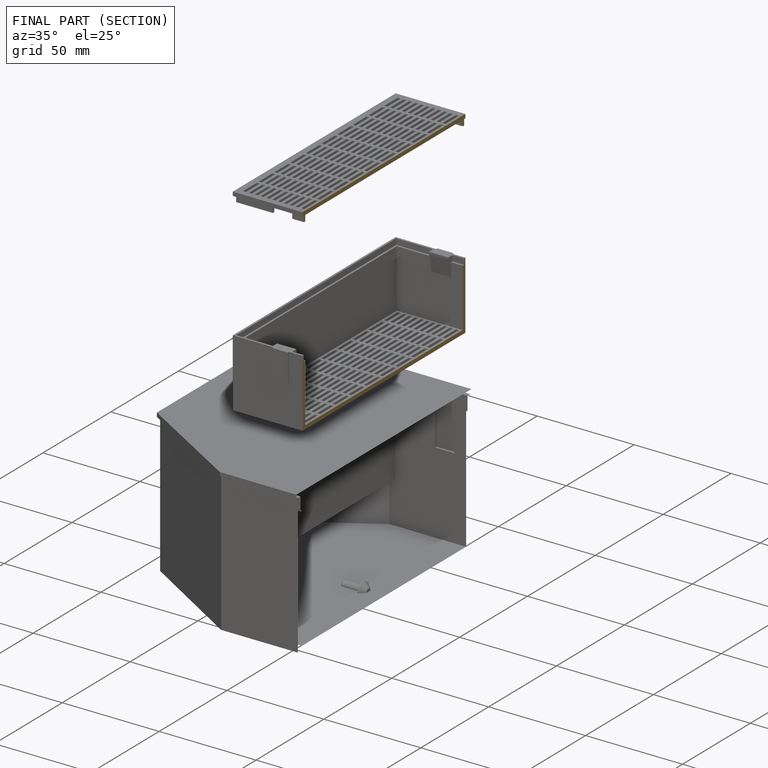
[diagram: finished part — half-section view (interior)]
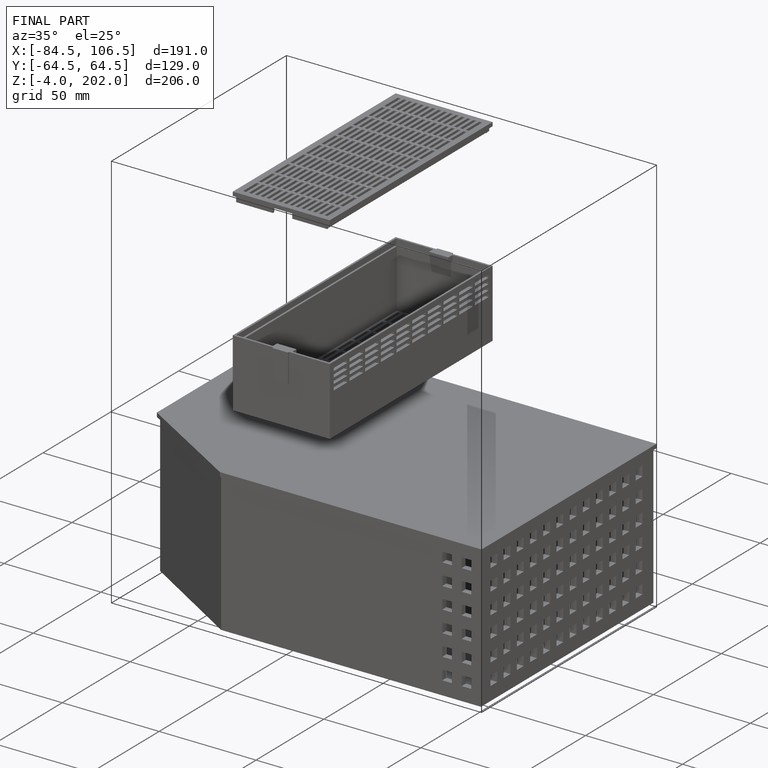
[diagram: finished part — iso view with bounding-box wireframe]
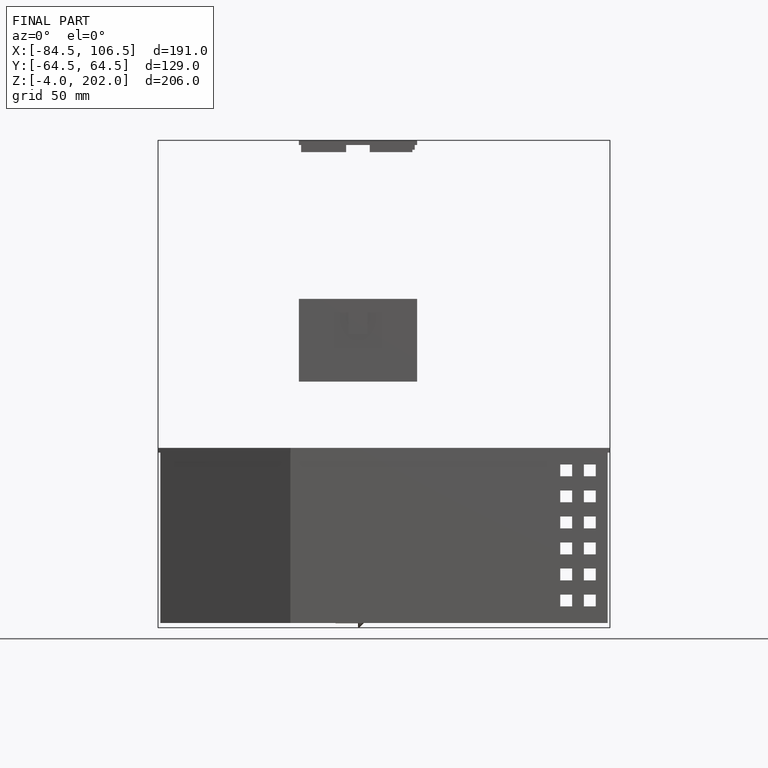
[diagram: finished part — front view with bounding-box wireframe]
